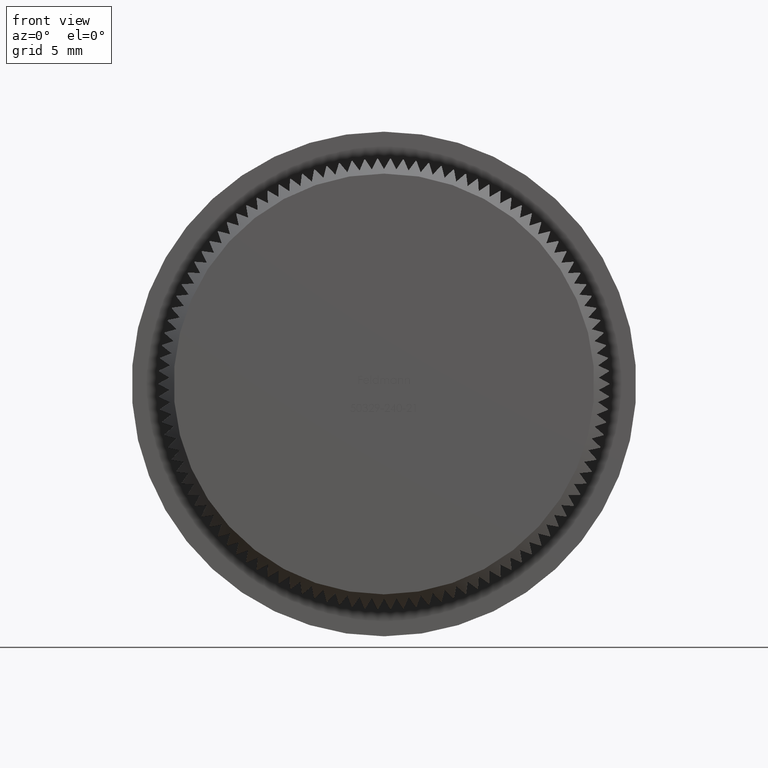
[diagram: clean part render]
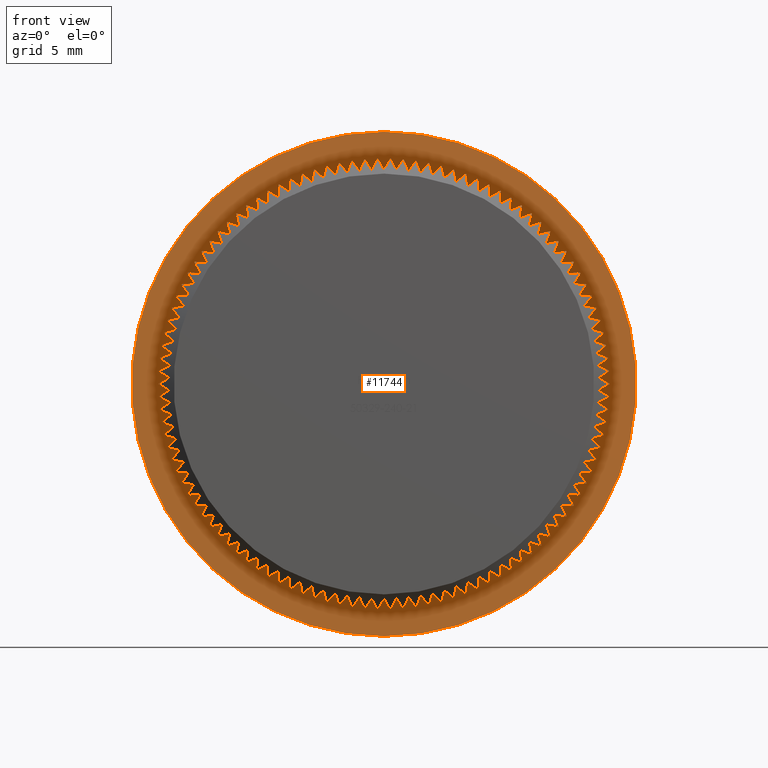
[diagram: same view with one face highlighted and labeled with its STEP entity id]
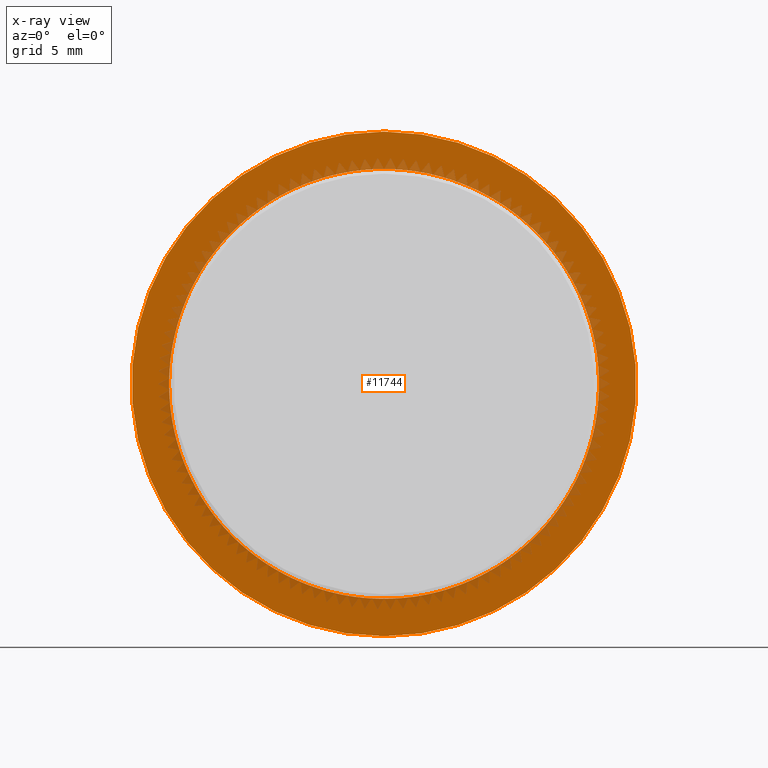
[diagram: x-ray of the same camera — body ghosted, the highlighted face saturated]
A machine part, front view. The second image highlights one B-rep face of the part: STEP entity #11744.
The next image is the same camera in x-ray: the body ghosted, the highlighted face saturated — about 14% of this face is hidden behind the body in this view.
In plain terms, the highlighted planar face has unit normal (0, -1, -0).
Its self-contained STEP definition (entity closure, byte-faithful):
#16 = AXIS2_PLACEMENT_3D ( 'NONE', #856, #3089, #20009 ) ;
#23 = DIRECTION ( 'NONE',  ( -0.0000000000000000000, -1.000000000000000000, -0.0000000000000000000 ) ) ;
#42 = CARTESIAN_POINT ( 'NONE',  ( 0.0000000000000000000, 8.000000000000000000, 0.0000000000000000000 ) ) ;
#53 = DIRECTION ( 'NONE',  ( -0.0000000000000000000, -1.000000000000000000, -0.0000000000000000000 ) ) ;
#63 = CARTESIAN_POINT ( 'NONE',  ( 0.0000000000000000000, 8.000000000000000000, 0.0000000000000000000 ) ) ;
#65 = VERTEX_POINT ( 'NONE', #8362 ) ;
#114 = CARTESIAN_POINT ( 'NONE',  ( 9.083728712157388000, 7.999999999999992900, -11.10893211267075900 ) ) ;
#161 = DIRECTION ( 'NONE',  ( 0.0000000000000000000, 0.0000000000000000000, -1.000000000000000000 ) ) ;
#163 = ORIENTED_EDGE ( 'NONE', *, *, #15001, .F. ) ;
#166 = EDGE_CURVE ( 'NONE', #10170, #11314, #7862, .T. ) ;
#170 = EDGE_CURVE ( 'NONE', #18889, #17156, #14568, .T. ) ;
#172 = DIRECTION ( 'NONE',  ( -0.0000000000000000000, -1.000000000000000000, -0.0000000000000000000 ) ) ;
#200 = ORIENTED_EDGE ( 'NONE', *, *, #3021, .F. ) ;
#217 = CARTESIAN_POINT ( 'NONE',  ( 0.0000000000000000000, 8.000000000000000000, 0.0000000000000000000 ) ) ;
#231 = DIRECTION ( 'NONE',  ( -0.0000000000000000000, -1.000000000000000000, -0.0000000000000000000 ) ) ;
#244 = VERTEX_POINT ( 'NONE', #13320 ) ;
#264 = VERTEX_POINT ( 'NONE', #7043 ) ;
#278 = DIRECTION ( 'NONE',  ( 0.0000000000000000000, 0.0000000000000000000, -1.000000000000000000 ) ) ;
#290 = VERTEX_POINT ( 'NONE', #11803 ) ;
#322 = DIRECTION ( 'NONE',  ( -0.0000000000000000000, -1.000000000000000000, -0.0000000000000000000 ) ) ;
#397 = AXIS2_PLACEMENT_3D ( 'NONE', #17071, #8624, #19241 ) ;
#419 = DIRECTION ( 'NONE',  ( 0.0000000000000000000, 0.0000000000000000000, -1.000000000000000000 ) ) ;
#449 = CARTESIAN_POINT ( 'NONE',  ( -0.8192244358807224700, 8.000000000000001800, 14.32659664134004800 ) ) ;
#475 = AXIS2_PLACEMENT_3D ( 'NONE', #22848, #12079, #22668 ) ;
#479 = AXIS2_PLACEMENT_3D ( 'NONE', #22656, #3042, #26650 ) ;
#529 = EDGE_CURVE ( 'NONE', #1890, #15119, #1120, .T. ) ;
#580 = DIRECTION ( 'NONE',  ( -0.0000000000000000000, -1.000000000000000000, -0.0000000000000000000 ) ) ;
#610 = VERTEX_POINT ( 'NONE', #19261 ) ;
#618 = EDGE_CURVE ( 'NONE', #19143, #23520, #12214, .T. ) ;
#625 = DIRECTION ( 'NONE',  ( -0.0000000000000000000, -1.000000000000000000, -0.0000000000000000000 ) ) ;
#630 = DIRECTION ( 'NONE',  ( 0.0000000000000000000, 0.0000000000000000000, -1.000000000000000000 ) ) ;
#642 = AXIS2_PLACEMENT_3D ( 'NONE', #2659, #17712, #19848 ) ;
#664 = ORIENTED_EDGE ( 'NONE', *, *, #15854, .F. ) ;
#702 = DIRECTION ( 'NONE',  ( -0.0000000000000000000, -1.000000000000000000, -0.0000000000000000000 ) ) ;
#723 = EDGE_CURVE ( 'NONE', #10108, #25889, #3136, .T. ) ;
#844 = DIRECTION ( 'NONE',  ( -0.0000000000000000000, -1.000000000000000000, -0.0000000000000000000 ) ) ;
#856 = CARTESIAN_POINT ( 'NONE',  ( 0.0000000000000000000, 8.000000000000000000, 0.0000000000000000000 ) ) ;
#880 = CARTESIAN_POINT ( 'NONE',  ( -7.056367468664341800, 7.999999999999992900, -12.49520620666884700 ) ) ;
#893 = EDGE_CURVE ( 'NONE', #5006, #9135, #19607, .T. ) ;
#894 = EDGE_CURVE ( 'NONE', #6823, #2932, #18256, .T. ) ;
#902 = ORIENTED_EDGE ( 'NONE', *, *, #15075, .F. ) ;
#923 = VERTEX_POINT ( 'NONE', #10583 ) ;
#990 = CIRCLE ( 'NONE', #6261, 14.35000000000000100 ) ;
#1015 = DIRECTION ( 'NONE',  ( 0.0000000000000000000, 0.0000000000000000000, -1.000000000000000000 ) ) ;
#1049 = ORIENTED_EDGE ( 'NONE', *, *, #1336, .F. ) ;
#1084 = CIRCLE ( 'NONE', #14282, 14.35000000000000100 ) ;
#1120 = CIRCLE ( 'NONE', #13420, 14.35000000000000100 ) ;
#1121 = DIRECTION ( 'NONE',  ( -0.0000000000000000000, -1.000000000000000000, -0.0000000000000000000 ) ) ;
#1124 = CIRCLE ( 'NONE', #13624, 14.35000000000000100 ) ;
#1162 = VERTEX_POINT ( 'NONE', #13556 ) ;
#1178 = DIRECTION ( 'NONE',  ( 0.0000000000000000000, 0.0000000000000000000, -1.000000000000000000 ) ) ;
#1192 = AXIS2_PLACEMENT_3D ( 'NONE', #25950, #23797, #4476 ) ;
#1215 = CARTESIAN_POINT ( 'NONE',  ( 14.20393769099140600, 7.999999999999996400, -2.042217929221504600 ) ) ;
#1227 = DIRECTION ( 'NONE',  ( -0.0000000000000000000, -1.000000000000000000, -0.0000000000000000000 ) ) ;
#1275 = CARTESIAN_POINT ( 'NONE',  ( 4.042862190674333600, 8.000000000000000000, 13.76872417136809400 ) ) ;
#1333 = CARTESIAN_POINT ( 'NONE',  ( 0.0000000000000000000, 8.000000000000000000, 0.0000000000000000000 ) ) ;
#1336 = EDGE_CURVE ( 'NONE', #15798, #24643, #20966, .T. ) ;
#1348 = ORIENTED_EDGE ( 'NONE', *, *, #19581, .F. ) ;
#1407 = CIRCLE ( 'NONE', #2769, 14.35000000000000100 ) ;
#1422 = ORIENTED_EDGE ( 'NONE', *, *, #21856, .F. ) ;
#1432 = CIRCLE ( 'NONE', #7976, 14.35000000000000100 ) ;
#1446 = CARTESIAN_POINT ( 'NONE',  ( -7.056367468664429800, 7.999999999999989300, 12.49520620666879900 ) ) ;
#1465 = EDGE_CURVE ( 'NONE', #22492, #13614, #15533, .T. ) ;
#1477 = VERTEX_POINT ( 'NONE', #8960 ) ;
#1517 = VERTEX_POINT ( 'NONE', #7624 ) ;
#1544 = EDGE_CURVE ( 'NONE', #20913, #6813, #24949, .T. ) ;
#1557 = ORIENTED_EDGE ( 'NONE', *, *, #26059, .F. ) ;
#1571 = AXIS2_PLACEMENT_3D ( 'NONE', #13853, #16225, #7682 ) ;
#1580 = ORIENTED_EDGE ( 'NONE', *, *, #9875, .F. ) ;
#1681 = DIRECTION ( 'NONE',  ( -0.0000000000000000000, -1.000000000000000000, -0.0000000000000000000 ) ) ;
#1704 = CARTESIAN_POINT ( 'NONE',  ( 13.64766100883540500, 8.000000000000000000, 4.434393869280651000 ) ) ;
#1745 = EDGE_CURVE ( 'NONE', #17410, #7090, #18615, .T. ) ;
#1752 = ORIENTED_EDGE ( 'NONE', *, *, #9551, .F. ) ;
#1755 = ORIENTED_EDGE ( 'NONE', *, *, #21834, .F. ) ;
#1793 = CARTESIAN_POINT ( 'NONE',  ( 0.0000000000000000000, 8.000000000000000000, 0.0000000000000000000 ) ) ;
#1808 = DIRECTION ( 'NONE',  ( -0.0000000000000000000, -1.000000000000000000, -0.0000000000000000000 ) ) ;
#1850 = CARTESIAN_POINT ( 'NONE',  ( 0.0000000000000000000, 8.000000000000000000, 0.0000000000000000000 ) ) ;
#1869 = CARTESIAN_POINT ( 'NONE',  ( 13.05321913333739800, 8.000000000000000000, -5.961205436576942200 ) ) ;
#1890 = VERTEX_POINT ( 'NONE', #19442 ) ;
#1904 = CARTESIAN_POINT ( 'NONE',  ( 0.0000000000000000000, 8.000000000000000000, 0.0000000000000000000 ) ) ;
#1914 = EDGE_CURVE ( 'NONE', #26325, #24867, #1124, .T. ) ;
#1916 = CARTESIAN_POINT ( 'NONE',  ( 7.056367468664255700, 7.999999999999989300, 12.49520620666889700 ) ) ;
#1948 = CARTESIAN_POINT ( 'NONE',  ( -12.28860858411026900, 7.999999999999992900, -7.410303574519163700 ) ) ;
#2004 = ORIENTED_EDGE ( 'NONE', *, *, #170, .F. ) ;
#2046 = VERTEX_POINT ( 'NONE', #26317 ) ;
#2085 = CIRCLE ( 'NONE', #4933, 14.35000000000000100 ) ;
#2087 = DIRECTION ( 'NONE',  ( -0.0000000000000000000, -1.000000000000000000, -0.0000000000000000000 ) ) ;
#2088 = CARTESIAN_POINT ( 'NONE',  ( 0.0000000000000000000, 8.000000000000000000, 0.0000000000000000000 ) ) ;
#2091 = CIRCLE ( 'NONE', #4823, 14.35000000000000100 ) ;
#2151 = VERTEX_POINT ( 'NONE', #24727 ) ;
#2154 = EDGE_CURVE ( 'NONE', #2539, #4980, #20578, .T. ) ;
#2172 = CARTESIAN_POINT ( 'NONE',  ( 2.446993464277955200, 8.000000000000000000, 14.13982754441443000 ) ) ;
#2252 = CIRCLE ( 'NONE', #3461, 14.35000000000000100 ) ;
#2269 = CIRCLE ( 'NONE', #8092, 14.35000000000000100 ) ;
#2277 = EDGE_CURVE ( 'NONE', #2046, #25672, #15536, .T. ) ;
#2316 = CARTESIAN_POINT ( 'NONE',  ( 0.0000000000000000000, 8.000000000000000000, 0.0000000000000000000 ) ) ;
#2407 = DIRECTION ( 'NONE',  ( -0.0000000000000000000, -1.000000000000000000, -0.0000000000000000000 ) ) ;
#2460 = CARTESIAN_POINT ( 'NONE',  ( -13.37224881918435500, 8.000000000000001800, 5.206290571781662100 ) ) ;
#2485 = AXIS2_PLACEMENT_3D ( 'NONE', #27064, #22891, #10245 ) ;
#2528 = EDGE_CURVE ( 'NONE', #23520, #27678, #22583, .T. ) ;
#2539 = VERTEX_POINT ( 'NONE', #2817 ) ;
#2602 = AXIS2_PLACEMENT_3D ( 'NONE', #8669, #21786, #23654 ) ;
#2630 = VERTEX_POINT ( 'NONE', #21192 ) ;
#2659 = CARTESIAN_POINT ( 'NONE',  ( 0.0000000000000000000, 8.000000000000000000, 0.0000000000000000000 ) ) ;
#2663 = ORIENTED_EDGE ( 'NONE', *, *, #6448, .F. ) ;
#2692 = EDGE_CURVE ( 'NONE', #65, #25465, #11517, .T. ) ;
#2767 = AXIS2_PLACEMENT_3D ( 'NONE', #20259, #13865, #9673 ) ;
#2769 = AXIS2_PLACEMENT_3D ( 'NONE', #10940, #18055, #7709 ) ;
#2770 = DIRECTION ( 'NONE',  ( 0.0000000000000000000, 0.0000000000000000000, -1.000000000000000000 ) ) ;
#2813 = EDGE_CURVE ( 'NONE', #27561, #18145, #23224, .T. ) ;
#2817 = CARTESIAN_POINT ( 'NONE',  ( 11.36379722898454900, 8.000000000000000000, 8.762797072768668400 ) ) ;
#2873 = DIRECTION ( 'NONE',  ( -0.0000000000000000000, -1.000000000000000000, -0.0000000000000000000 ) ) ;
#2932 = VERTEX_POINT ( 'NONE', #21164 ) ;
#2944 = ORIENTED_EDGE ( 'NONE', *, *, #14160, .F. ) ;
#2954 = ORIENTED_EDGE ( 'NONE', *, *, #16028, .F. ) ;
#3021 = EDGE_CURVE ( 'NONE', #17156, #15591, #2091, .T. ) ;
#3035 = CIRCLE ( 'NONE', #14199, 14.35000000000000100 ) ;
#3042 = DIRECTION ( 'NONE',  ( -0.0000000000000000000, -1.000000000000000000, -0.0000000000000000000 ) ) ;
#3051 = EDGE_CURVE ( 'NONE', #17091, #18209, #17914, .T. ) ;
#3089 = DIRECTION ( 'NONE',  ( -0.0000000000000000000, -1.000000000000000000, -0.0000000000000000000 ) ) ;
#3136 = CIRCLE ( 'NONE', #19049, 14.35000000000000100 ) ;
#3141 = EDGE_CURVE ( 'NONE', #25260, #20254, #19268, .T. ) ;
#3152 = CARTESIAN_POINT ( 'NONE',  ( 0.0000000000000000000, 8.000000000000000000, 0.0000000000000000000 ) ) ;
#3356 = DIRECTION ( 'NONE',  ( 0.0000000000000000000, 0.0000000000000000000, -1.000000000000000000 ) ) ;
#3451 = CARTESIAN_POINT ( 'NONE',  ( 0.0000000000000000000, 8.000000000000000000, 0.0000000000000000000 ) ) ;
#3461 = AXIS2_PLACEMENT_3D ( 'NONE', #9960, #22691, #20738 ) ;
#3494 = DIRECTION ( 'NONE',  ( 0.0000000000000000000, 0.0000000000000000000, -1.000000000000000000 ) ) ;
#3546 = AXIS2_PLACEMENT_3D ( 'NONE', #6411, #27748, #21418 ) ;
#3577 = AXIS2_PLACEMENT_3D ( 'NONE', #13384, #4452, #26017 ) ;
#3600 = DIRECTION ( 'NONE',  ( -0.0000000000000000000, -1.000000000000000000, -0.0000000000000000000 ) ) ;
#3619 = ORIENTED_EDGE ( 'NONE', *, *, #25942, .F. ) ;
#3649 = VERTEX_POINT ( 'NONE', #18773 ) ;
#3674 = CARTESIAN_POINT ( 'NONE',  ( 0.0000000000000000000, 8.000000000000000000, 0.0000000000000000000 ) ) ;
#3675 = CIRCLE ( 'NONE', #18868, 14.35000000000000100 ) ;
#3696 = DIRECTION ( 'NONE',  ( -0.0000000000000000000, -1.000000000000000000, -0.0000000000000000000 ) ) ;
#3735 = CARTESIAN_POINT ( 'NONE',  ( 0.0000000000000000000, 8.000000000000000000, 0.0000000000000000000 ) ) ;
#3748 = AXIS2_PLACEMENT_3D ( 'NONE', #9611, #13990, #13908 ) ;
#3788 = CARTESIAN_POINT ( 'NONE',  ( 0.0000000000000000000, 8.000000000000000000, 0.0000000000000000000 ) ) ;
#3796 = EDGE_CURVE ( 'NONE', #6852, #19467, #19232, .T. ) ;
#3803 = CIRCLE ( 'NONE', #25933, 14.35000000000000100 ) ;
#3822 = ORIENTED_EDGE ( 'NONE', *, *, #3051, .F. ) ;
#3878 = CARTESIAN_POINT ( 'NONE',  ( -0.8192244358806252100, 7.999999999999996400, -14.32659664134005500 ) ) ;
#3923 = VERTEX_POINT ( 'NONE', #22078 ) ;
#3932 = CIRCLE ( 'NONE', #397, 14.35000000000000100 ) ;
#3937 = CARTESIAN_POINT ( 'NONE',  ( -8.434718370396925700, 7.999999999999996400, -11.60939386928054300 ) ) ;
#3946 = ORIENTED_EDGE ( 'NONE', *, *, #18511, .F. ) ;
#3950 = EDGE_CURVE ( 'NONE', #26003, #923, #9796, .T. ) ;
#3999 = ORIENTED_EDGE ( 'NONE', *, *, #4617, .F. ) ;
#4030 = AXIS2_PLACEMENT_3D ( 'NONE', #19497, #53, #19406 ) ;
#4053 = VERTEX_POINT ( 'NONE', #18715 ) ;
#4067 = AXIS2_PLACEMENT_3D ( 'NONE', #8506, #23481, #23582 ) ;
#4101 = CARTESIAN_POINT ( 'NONE',  ( 0.0000000000000000000, 8.000000000000000000, 0.0000000000000000000 ) ) ;
#4113 = DIRECTION ( 'NONE',  ( 0.0000000000000000000, 0.0000000000000000000, -1.000000000000000000 ) ) ;
#4132 = CARTESIAN_POINT ( 'NONE',  ( 0.0000000000000000000, 8.000000000000000000, 0.0000000000000000000 ) ) ;
#4160 = CARTESIAN_POINT ( 'NONE',  ( 0.0000000000000000000, 8.000000000000000000, 0.0000000000000000000 ) ) ;
#4193 = AXIS2_PLACEMENT_3D ( 'NONE', #20900, #12445, #27688 ) ;
#4288 = DIRECTION ( 'NONE',  ( -0.0000000000000000000, -1.000000000000000000, -0.0000000000000000000 ) ) ;
#4360 = AXIS2_PLACEMENT_3D ( 'NONE', #16819, #18985, #27526 ) ;
#4380 = CARTESIAN_POINT ( 'NONE',  ( 0.0000000000000000000, 8.000000000000000000, 0.0000000000000000000 ) ) ;
#4397 = AXIS2_PLACEMENT_3D ( 'NONE', #8317, #5759, #20791 ) ;
#4413 = CARTESIAN_POINT ( 'NONE',  ( 0.0000000000000000000, 8.000000000000000000, 0.0000000000000000000 ) ) ;
#4452 = DIRECTION ( 'NONE',  ( -0.0000000000000000000, -1.000000000000000000, -0.0000000000000000000 ) ) ;
#4476 = DIRECTION ( 'NONE',  ( 0.0000000000000000000, 0.0000000000000000000, -1.000000000000000000 ) ) ;
#4480 = CARTESIAN_POINT ( 'NONE',  ( 11.84552172141588000, 8.000000000000000000, -8.099760190738033200 ) ) ;
#4504 = CARTESIAN_POINT ( 'NONE',  ( 0.0000000000000000000, 8.000000000000000000, 0.0000000000000000000 ) ) ;
#4533 = CARTESIAN_POINT ( 'NONE',  ( -12.69161255981865300, 8.000000000000000000, 6.696676088288389100 ) ) ;
#4575 = DIRECTION ( 'NONE',  ( 0.0000000000000000000, 0.0000000000000000000, -1.000000000000000000 ) ) ;
#4597 = CARTESIAN_POINT ( 'NONE',  ( 0.0000000000000000000, 8.000000000000000000, 0.0000000000000000000 ) ) ;
#4610 = CIRCLE ( 'NONE', #18913, 14.35000000000000100 ) ;
#4617 = EDGE_CURVE ( 'NONE', #12017, #20836, #3035, .T. ) ;
#4622 = DIRECTION ( 'NONE',  ( 0.0000000000000000000, 0.0000000000000000000, -1.000000000000000000 ) ) ;
#4640 = CIRCLE ( 'NONE', #12811, 14.35000000000000100 ) ;
#4667 = CARTESIAN_POINT ( 'NONE',  ( 0.0000000000000000000, 8.000000000000000000, 0.0000000000000000000 ) ) ;
#4684 = ORIENTED_EDGE ( 'NONE', *, *, #19630, .F. ) ;
#4693 = CIRCLE ( 'NONE', #2602, 14.35000000000000100 ) ;
#4823 = AXIS2_PLACEMENT_3D ( 'NONE', #10661, #15047, #10939 ) ;
#4837 = DIRECTION ( 'NONE',  ( 0.0000000000000000000, 0.0000000000000000000, -1.000000000000000000 ) ) ;
#4843 = CARTESIAN_POINT ( 'NONE',  ( -12.28860858411032100, 7.999999999999996400, 7.410303574519077500 ) ) ;
#4846 = VERTEX_POINT ( 'NONE', #2460 ) ;
#4847 = CARTESIAN_POINT ( 'NONE',  ( 4.822308792641525300, 8.000000000000000000, -13.51546661822714600 ) ) ;
#4870 = CARTESIAN_POINT ( 'NONE',  ( 0.0000000000000000000, 8.000000000000000000, 0.0000000000000000000 ) ) ;
#4893 = AXIS2_PLACEMENT_3D ( 'NONE', #20322, #14023, #16203 ) ;
#4910 = CIRCLE ( 'NONE', #25723, 14.35000000000000100 ) ;
#4933 = AXIS2_PLACEMENT_3D ( 'NONE', #25143, #25322, #4113 ) ;
#4954 = CARTESIAN_POINT ( 'NONE',  ( 0.0000000000000000000, 8.000000000000000000, 0.0000000000000000000 ) ) ;
#4962 = ORIENTED_EDGE ( 'NONE', *, *, #27140, .F. ) ;
#4980 = VERTEX_POINT ( 'NONE', #17879 ) ;
#5006 = VERTEX_POINT ( 'NONE', #1215 ) ;
#5060 = AXIS2_PLACEMENT_3D ( 'NONE', #3152, #15927, #5213 ) ;
#5097 = DIRECTION ( 'NONE',  ( -0.0000000000000000000, -1.000000000000000000, -0.0000000000000000000 ) ) ;
#5100 = DIRECTION ( 'NONE',  ( -0.0000000000000000000, -1.000000000000000000, -0.0000000000000000000 ) ) ;
#5105 = AXIS2_PLACEMENT_3D ( 'NONE', #11674, #9617, #7267 ) ;
#5140 = CARTESIAN_POINT ( 'NONE',  ( 12.69161255981856200, 7.999999999999986700, 6.696676088288565000 ) ) ;
#5213 = DIRECTION ( 'NONE',  ( 0.0000000000000000000, 0.0000000000000000000, -1.000000000000000000 ) ) ;
#5224 = AXIS2_PLACEMENT_3D ( 'NONE', #23056, #18970, #10127 ) ;
#5297 = ORIENTED_EDGE ( 'NONE', *, *, #5829, .F. ) ;
#5309 = EDGE_CURVE ( 'NONE', #24892, #12017, #13097, .T. ) ;
#5326 = CARTESIAN_POINT ( 'NONE',  ( 0.0000000000000000000, 8.000000000000000000, 0.0000000000000000000 ) ) ;
#5360 = CARTESIAN_POINT ( 'NONE',  ( -5.586026025654581100, 8.000000000000000000, 13.21812442219809500 ) ) ;
#5367 = DIRECTION ( 'NONE',  ( 0.0000000000000000000, 0.0000000000000000000, -1.000000000000000000 ) ) ;
#5379 = AXIS2_PLACEMENT_3D ( 'NONE', #17736, #2407, #4837 ) ;
#5415 = DIRECTION ( 'NONE',  ( -0.0000000000000000000, -1.000000000000000000, -0.0000000000000000000 ) ) ;
#5574 = DIRECTION ( 'NONE',  ( 0.0000000000000000000, 0.0000000000000000000, -1.000000000000000000 ) ) ;
#5599 = CARTESIAN_POINT ( 'NONE',  ( 5.586026025654674300, 7.999999999999989300, -13.21812442219805900 ) ) ;
#5614 = ORIENTED_EDGE ( 'NONE', *, *, #14164, .F. ) ;
#5738 = CARTESIAN_POINT ( 'NONE',  ( 0.0000000000000000000, 8.000000000000000000, 0.0000000000000000000 ) ) ;
#5759 = DIRECTION ( 'NONE',  ( 0.0000000000000000000, -1.000000000000000000, -0.0000000000000000000 ) ) ;
#5763 = ORIENTED_EDGE ( 'NONE', *, *, #618, .F. ) ;
#5829 = EDGE_CURVE ( 'NONE', #2151, #10007, #27113, .T. ) ;
#5840 = VERTEX_POINT ( 'NONE', #19619 ) ;
#5865 = EDGE_CURVE ( 'NONE', #21577, #23933, #8713, .T. ) ;
#5892 = AXIS2_PLACEMENT_3D ( 'NONE', #18135, #580, #17874 ) ;
#5905 = ORIENTED_EDGE ( 'NONE', *, *, #18175, .F. ) ;
#6031 = EDGE_CURVE ( 'NONE', #11070, #2539, #23779, .T. ) ;
#6066 = VERTEX_POINT ( 'NONE', #16601 ) ;
#6095 = AXIS2_PLACEMENT_3D ( 'NONE', #13954, #6941, #26847 ) ;
#6159 = EDGE_CURVE ( 'NONE', #24330, #11988, #18788, .T. ) ;
#6162 = ORIENTED_EDGE ( 'NONE', *, *, #10282, .F. ) ;
#6242 = CARTESIAN_POINT ( 'NONE',  ( 0.0000000000000000000, 8.000000000000000000, 0.0000000000000000000 ) ) ;
#6261 = AXIS2_PLACEMENT_3D ( 'NONE', #3451, #12202, #22965 ) ;
#6341 = DIRECTION ( 'NONE',  ( -0.0000000000000000000, -1.000000000000000000, -0.0000000000000000000 ) ) ;
#6390 = AXIS2_PLACEMENT_3D ( 'NONE', #25588, #25677, #6475 ) ;
#6411 = CARTESIAN_POINT ( 'NONE',  ( 0.0000000000000000000, 8.000000000000000000, 0.0000000000000000000 ) ) ;
#6435 = CARTESIAN_POINT ( 'NONE',  ( 14.29736033787961000, 8.000000000000000000, 1.228001371671507200 ) ) ;
#6448 = EDGE_CURVE ( 'NONE', #25889, #21771, #13388, .T. ) ;
#6475 = DIRECTION ( 'NONE',  ( 0.0000000000000000000, 0.0000000000000000000, -1.000000000000000000 ) ) ;
#6486 = CIRCLE ( 'NONE', #7430, 14.35000000000000100 ) ;
#6588 = CARTESIAN_POINT ( 'NONE',  ( -7.758195730487758900, 7.999999999999996400, -12.07198819612749600 ) ) ;
#6622 = DIRECTION ( 'NONE',  ( 0.0000000000000000000, 0.0000000000000000000, -1.000000000000000000 ) ) ;
#6641 = CARTESIAN_POINT ( 'NONE',  ( 1.635776731929068100, 8.000000000000000000, 14.25646290225172000 ) ) ;
#6645 = DIRECTION ( 'NONE',  ( 0.0000000000000000000, 0.0000000000000000000, -1.000000000000000000 ) ) ;
#6731 = CARTESIAN_POINT ( 'NONE',  ( 0.0000000000000000000, 8.000000000000000000, 0.0000000000000000000 ) ) ;
#6813 = VERTEX_POINT ( 'NONE', #8954 ) ;
#6823 = VERTEX_POINT ( 'NONE', #23919 ) ;
#6852 = VERTEX_POINT ( 'NONE', #17946 ) ;
#6900 = ORIENTED_EDGE ( 'NONE', *, *, #7241, .F. ) ;
#6901 = VERTEX_POINT ( 'NONE', #5140 ) ;
#6923 = EDGE_CURVE ( 'NONE', #23049, #10496, #4640, .T. ) ;
#6941 = DIRECTION ( 'NONE',  ( -0.0000000000000000000, -1.000000000000000000, -0.0000000000000000000 ) ) ;
#6953 = DIRECTION ( 'NONE',  ( -0.0000000000000000000, -1.000000000000000000, -0.0000000000000000000 ) ) ;
#6974 = CARTESIAN_POINT ( 'NONE',  ( 0.0000000000000000000, 8.000000000000000000, 0.0000000000000000000 ) ) ;
#6980 = ORIENTED_EDGE ( 'NONE', *, *, #9670, .F. ) ;
#7043 = CARTESIAN_POINT ( 'NONE',  ( -13.87855736497307300, 8.000000000000000000, -3.648033095676593600 ) ) ;
#7052 = ORIENTED_EDGE ( 'NONE', *, *, #12336, .F. ) ;
#7077 = AXIS2_PLACEMENT_3D ( 'NONE', #3735, #21297, #14731 ) ;
#7081 = EDGE_CURVE ( 'NONE', #244, #290, #20401, .T. ) ;
#7090 = VERTEX_POINT ( 'NONE', #20731 ) ;
#7150 = AXIS2_PLACEMENT_3D ( 'NONE', #24777, #1227, #11948 ) ;
#7176 = CARTESIAN_POINT ( 'NONE',  ( -14.20393769099137800, 8.000000000000000000, -2.042217929221696900 ) ) ;
#7185 = CARTESIAN_POINT ( 'NONE',  ( 0.0000000000000000000, 8.000000000000000000, 0.0000000000000000000 ) ) ;
#7218 = ORIENTED_EDGE ( 'NONE', *, *, #16757, .F. ) ;
#7241 = EDGE_CURVE ( 'NONE', #1162, #21123, #3932, .T. ) ;
#7267 = DIRECTION ( 'NONE',  ( 0.0000000000000000000, 0.0000000000000000000, -1.000000000000000000 ) ) ;
#7280 = CARTESIAN_POINT ( 'NONE',  ( 0.0000000000000000000, 8.000000000000000000, 0.0000000000000000000 ) ) ;
#7295 = CARTESIAN_POINT ( 'NONE',  ( 0.0000000000000000000, 8.000000000000000000, 0.0000000000000000000 ) ) ;
#7303 = AXIS2_PLACEMENT_3D ( 'NONE', #17791, #322, #19933 ) ;
#7356 = CARTESIAN_POINT ( 'NONE',  ( 3.250228612559823200, 7.999999999999986700, -13.97707100812246700 ) ) ;
#7365 = DIRECTION ( 'NONE',  ( -0.0000000000000000000, -1.000000000000000000, -0.0000000000000000000 ) ) ;
#7397 = EDGE_CURVE ( 'NONE', #19467, #20913, #24082, .T. ) ;
#7411 = CIRCLE ( 'NONE', #27041, 14.35000000000000100 ) ;
#7429 = DIRECTION ( 'NONE',  ( -0.0000000000000000000, -1.000000000000000000, -0.0000000000000000000 ) ) ;
#7430 = AXIS2_PLACEMENT_3D ( 'NONE', #26286, #5100, #17811 ) ;
#7432 = VERTEX_POINT ( 'NONE', #449 ) ;
#7441 = ORIENTED_EDGE ( 'NONE', *, *, #22624, .F. ) ;
#7514 = CARTESIAN_POINT ( 'NONE',  ( 0.0000000000000000000, 8.000000000000000000, 0.0000000000000000000 ) ) ;
#7527 = DIRECTION ( 'NONE',  ( 0.0000000000000000000, 0.0000000000000000000, -1.000000000000000000 ) ) ;
#7579 = DIRECTION ( 'NONE',  ( -0.0000000000000000000, -1.000000000000000000, -0.0000000000000000000 ) ) ;
#7613 = DIRECTION ( 'NONE',  ( -0.0000000000000000000, -1.000000000000000000, -0.0000000000000000000 ) ) ;
#7616 = ORIENTED_EDGE ( 'NONE', *, *, #25127, .F. ) ;
#7621 = ORIENTED_EDGE ( 'NONE', *, *, #14328, .F. ) ;
#7624 = CARTESIAN_POINT ( 'NONE',  ( -11.36379722898460500, 8.000000000000000000, -8.762797072768593800 ) ) ;
#7682 = DIRECTION ( 'NONE',  ( 0.0000000000000000000, 0.0000000000000000000, -1.000000000000000000 ) ) ;
#7709 = DIRECTION ( 'NONE',  ( 0.0000000000000000000, 0.0000000000000000000, -1.000000000000000000 ) ) ;
#7715 = VERTEX_POINT ( 'NONE', #10155 ) ;
#7742 = CARTESIAN_POINT ( 'NONE',  ( -11.36379722898466600, 8.000000000000000000, 8.762797072768515600 ) ) ;
#7762 = CIRCLE ( 'NONE', #15194, 14.35000000000000100 ) ;
#7793 = CIRCLE ( 'NONE', #23637, 14.35000000000000100 ) ;
#7862 = CIRCLE ( 'NONE', #6390, 14.35000000000000100 ) ;
#7866 = DIRECTION ( 'NONE',  ( 0.0000000000000000000, 0.0000000000000000000, -1.000000000000000000 ) ) ;
#7931 = AXIS2_PLACEMENT_3D ( 'NONE', #217, #17403, #26070 ) ;
#7938 = EDGE_CURVE ( 'NONE', #6901, #3923, #2252, .T. ) ;
#7945 = CARTESIAN_POINT ( 'NONE',  ( 0.0000000000000000000, 8.000000000000000000, 0.0000000000000000000 ) ) ;
#7959 = CARTESIAN_POINT ( 'NONE',  ( 0.0000000000000000000, 8.000000000000000000, 0.0000000000000000000 ) ) ;
#7976 = AXIS2_PLACEMENT_3D ( 'NONE', #13561, #702, #20040 ) ;
#7980 = CARTESIAN_POINT ( 'NONE',  ( 13.87855736497304600, 8.000000000000000000, 3.648033095676691300 ) ) ;
#8015 = CARTESIAN_POINT ( 'NONE',  ( 5.586026025654402500, 8.000000000000001800, 13.21812442219816900 ) ) ;
#8060 = EDGE_CURVE ( 'NONE', #12071, #4846, #14677, .T. ) ;
#8092 = AXIS2_PLACEMENT_3D ( 'NONE', #21554, #10894, #25844 ) ;
#8149 = EDGE_CURVE ( 'NONE', #264, #14241, #22387, .T. ) ;
#8150 = CARTESIAN_POINT ( 'NONE',  ( 0.0000000000000000000, 8.000000000000000000, 0.0000000000000000000 ) ) ;
#8165 = DIRECTION ( 'NONE',  ( 0.0000000000000000000, 0.0000000000000000000, -1.000000000000000000 ) ) ;
#8175 = AXIS2_PLACEMENT_3D ( 'NONE', #4160, #24996, #12160 ) ;
#8249 = VERTEX_POINT ( 'NONE', #11458 ) ;
#8277 = EDGE_CURVE ( 'NONE', #26684, #21362, #26701, .T. ) ;
#8313 = EDGE_CURVE ( 'NONE', #18750, #10170, #12339, .T. ) ;
#8317 = CARTESIAN_POINT ( 'NONE',  ( 16.85000000000000100, 8.000000000000000000, 0.0000000000000000000 ) ) ;
#8362 = CARTESIAN_POINT ( 'NONE',  ( -12.69161255981860800, 8.000000000000000000, -6.696676088288474400 ) ) ;
#8476 = CARTESIAN_POINT ( 'NONE',  ( 6.331522802840056300, 8.000000000000000000, 12.87766745172107700 ) ) ;
#8506 = CARTESIAN_POINT ( 'NONE',  ( 0.0000000000000000000, 8.000000000000000000, 0.0000000000000000000 ) ) ;
#8534 = DIRECTION ( 'NONE',  ( 0.0000000000000000000, 0.0000000000000000000, -1.000000000000000000 ) ) ;
#8551 = CIRCLE ( 'NONE', #22121, 14.35000000000000100 ) ;
#8562 = ORIENTED_EDGE ( 'NONE', *, *, #17699, .F. ) ;
#8613 = DIRECTION ( 'NONE',  ( 0.0000000000000000000, 0.0000000000000000000, -1.000000000000000000 ) ) ;
#8624 = DIRECTION ( 'NONE',  ( -0.0000000000000000000, -1.000000000000000000, -0.0000000000000000000 ) ) ;
#8631 = CIRCLE ( 'NONE', #10857, 14.35000000000000100 ) ;
#8639 = DIRECTION ( 'NONE',  ( 0.0000000000000000000, 0.0000000000000000000, -1.000000000000000000 ) ) ;
#8653 = CIRCLE ( 'NONE', #9899, 14.35000000000000100 ) ;
#8669 = CARTESIAN_POINT ( 'NONE',  ( 0.0000000000000000000, 8.000000000000000000, 0.0000000000000000000 ) ) ;
#8684 = EDGE_CURVE ( 'NONE', #18209, #4053, #4910, .T. ) ;
#8693 = DIRECTION ( 'NONE',  ( -0.0000000000000000000, -1.000000000000000000, -0.0000000000000000000 ) ) ;
#8713 = CIRCLE ( 'NONE', #5379, 14.35000000000000100 ) ;
#8739 = DIRECTION ( 'NONE',  ( 0.0000000000000000000, 0.0000000000000000000, -1.000000000000000000 ) ) ;
#8768 = EDGE_CURVE ( 'NONE', #23933, #3649, #8631, .T. ) ;
#8790 = DIRECTION ( 'NONE',  ( -0.0000000000000000000, -1.000000000000000000, -0.0000000000000000000 ) ) ;
#8798 = CARTESIAN_POINT ( 'NONE',  ( -13.87855736497309800, 7.999999999999996400, 3.648033095676497300 ) ) ;
#8836 = DIRECTION ( 'NONE',  ( -0.0000000000000000000, -1.000000000000000000, -0.0000000000000000000 ) ) ;
#8954 = CARTESIAN_POINT ( 'NONE',  ( 8.434718370396849400, 8.000000000000000000, 11.60939386928060000 ) ) ;
#8960 = CARTESIAN_POINT ( 'NONE',  ( 7.056367468664515900, 7.999999999999996400, -12.49520620666874700 ) ) ;
#8966 = ORIENTED_EDGE ( 'NONE', *, *, #8684, .F. ) ;
#8968 = CARTESIAN_POINT ( 'NONE',  ( 7.758195730487927700, 8.000000000000000000, -12.07198819612738600 ) ) ;
#9012 = VERTEX_POINT ( 'NONE', #11398 ) ;
#9067 = ORIENTED_EDGE ( 'NONE', *, *, #22418, .F. ) ;
#9135 = VERTEX_POINT ( 'NONE', #22807 ) ;
#9209 = AXIS2_PLACEMENT_3D ( 'NONE', #4132, #19191, #17114 ) ;
#9248 = CARTESIAN_POINT ( 'NONE',  ( -2.446993464278060000, 8.000000000000001800, -14.13982754441441300 ) ) ;
#9306 = ORIENTED_EDGE ( 'NONE', *, *, #20778, .F. ) ;
#9392 = ORIENTED_EDGE ( 'NONE', *, *, #13153, .F. ) ;
#9513 = CARTESIAN_POINT ( 'NONE',  ( 0.0000000000000000000, 8.000000000000000000, 0.0000000000000000000 ) ) ;
#9551 = EDGE_CURVE ( 'NONE', #27447, #20532, #27000, .T. ) ;
#9558 = CARTESIAN_POINT ( 'NONE',  ( 0.0000000000000000000, 8.000000000000000000, 0.0000000000000000000 ) ) ;
#9599 = CIRCLE ( 'NONE', #20526, 14.35000000000000100 ) ;
#9611 = CARTESIAN_POINT ( 'NONE',  ( 0.0000000000000000000, 8.000000000000000000, 0.0000000000000000000 ) ) ;
#9617 = DIRECTION ( 'NONE',  ( -0.0000000000000000000, -1.000000000000000000, -0.0000000000000000000 ) ) ;
#9631 = EDGE_CURVE ( 'NONE', #15245, #65, #22336, .T. ) ;
#9670 = EDGE_CURVE ( 'NONE', #18555, #25260, #24005, .T. ) ;
#9673 = DIRECTION ( 'NONE',  ( 0.0000000000000000000, 0.0000000000000000000, -1.000000000000000000 ) ) ;
#9748 = DIRECTION ( 'NONE',  ( -0.0000000000000000000, -1.000000000000000000, -0.0000000000000000000 ) ) ;
#9796 = CIRCLE ( 'NONE', #3748, 14.35000000000000100 ) ;
#9875 = EDGE_CURVE ( 'NONE', #11314, #10122, #26971, .T. ) ;
#9899 = AXIS2_PLACEMENT_3D ( 'NONE', #3674, #1808, #10272 ) ;
#9960 = CARTESIAN_POINT ( 'NONE',  ( 0.0000000000000000000, 8.000000000000000000, 0.0000000000000000000 ) ) ;
#9967 = ORIENTED_EDGE ( 'NONE', *, *, #893, .F. ) ;
#10007 = VERTEX_POINT ( 'NONE', #7742 ) ;
#10009 = ORIENTED_EDGE ( 'NONE', *, *, #7938, .F. ) ;
#10078 = DIRECTION ( 'NONE',  ( -0.0000000000000000000, -1.000000000000000000, -0.0000000000000000000 ) ) ;
#10108 = VERTEX_POINT ( 'NONE', #8015 ) ;
#10111 = EDGE_CURVE ( 'NONE', #14906, #17410, #10959, .T. ) ;
#10122 = VERTEX_POINT ( 'NONE', #1704 ) ;
#10127 = DIRECTION ( 'NONE',  ( 0.0000000000000000000, 0.0000000000000000000, -1.000000000000000000 ) ) ;
#10132 = CIRCLE ( 'NONE', #479, 14.35000000000000100 ) ;
#10133 = DIRECTION ( 'NONE',  ( -0.0000000000000000000, -1.000000000000000000, -0.0000000000000000000 ) ) ;
#10142 = VERTEX_POINT ( 'NONE', #3937 ) ;
#10149 = CARTESIAN_POINT ( 'NONE',  ( -11.84552172141582500, 8.000000000000000000, 8.099760190738113200 ) ) ;
#10155 = CARTESIAN_POINT ( 'NONE',  ( -10.84500639198356400, 8.000000000000000000, -9.397251532114895100 ) ) ;
#10170 = VERTEX_POINT ( 'NONE', #21145 ) ;
#10181 = CIRCLE ( 'NONE', #21586, 14.35000000000000100 ) ;
#10245 = DIRECTION ( 'NONE',  ( 0.0000000000000000000, 0.0000000000000000000, -1.000000000000000000 ) ) ;
#10272 = DIRECTION ( 'NONE',  ( 0.0000000000000000000, 0.0000000000000000000, -1.000000000000000000 ) ) ;
#10282 = EDGE_CURVE ( 'NONE', #4053, #9012, #25316, .T. ) ;
#10285 = ORIENTED_EDGE ( 'NONE', *, *, #21248, .F. ) ;
#10296 = DIRECTION ( 'NONE',  ( -0.0000000000000000000, -1.000000000000000000, -0.0000000000000000000 ) ) ;
#10306 = DIRECTION ( 'NONE',  ( -0.0000000000000000000, -1.000000000000000000, -0.0000000000000000000 ) ) ;
#10311 = AXIS2_PLACEMENT_3D ( 'NONE', #20445, #5415, #14343 ) ;
#10365 = CARTESIAN_POINT ( 'NONE',  ( 0.0000000000000000000, 8.000000000000000000, 0.0000000000000000000 ) ) ;
#10373 = DIRECTION ( 'NONE',  ( -0.0000000000000000000, -1.000000000000000000, -0.0000000000000000000 ) ) ;
#10399 = DIRECTION ( 'NONE',  ( 0.0000000000000000000, 0.0000000000000000000, -1.000000000000000000 ) ) ;
#10464 = CIRCLE ( 'NONE', #2767, 14.35000000000000100 ) ;
#10478 = EDGE_CURVE ( 'NONE', #6813, #18889, #12260, .T. ) ;
#10496 = VERTEX_POINT ( 'NONE', #20026 ) ;
#10508 = FACE_OUTER_BOUND ( 'NONE', #16168, .T. ) ;
#10548 = DIRECTION ( 'NONE',  ( -0.0000000000000000000, -1.000000000000000000, -0.0000000000000000000 ) ) ;
#10583 = CARTESIAN_POINT ( 'NONE',  ( -14.06418475167585800, 7.999999999999986700, 2.849773196366405700 ) ) ;
#10589 = ORIENTED_EDGE ( 'NONE', *, *, #16710, .F. ) ;
#10592 = ORIENTED_EDGE ( 'NONE', *, *, #18601, .F. ) ;
#10610 = EDGE_CURVE ( 'NONE', #16180, #11164, #14268, .T. ) ;
#10661 = CARTESIAN_POINT ( 'NONE',  ( 0.0000000000000000000, 8.000000000000000000, 0.0000000000000000000 ) ) ;
#10667 = DIRECTION ( 'NONE',  ( -0.0000000000000000000, -1.000000000000000000, -0.0000000000000000000 ) ) ;
#10679 = CIRCLE ( 'NONE', #15474, 14.35000000000000100 ) ;
#10705 = DIRECTION ( 'NONE',  ( -0.0000000000000000000, -1.000000000000000000, -0.0000000000000000000 ) ) ;
#10717 = ORIENTED_EDGE ( 'NONE', *, *, #6159, .F. ) ;
#10764 = DIRECTION ( 'NONE',  ( 0.0000000000000000000, 0.0000000000000000000, -1.000000000000000000 ) ) ;
#10767 = AXIS2_PLACEMENT_3D ( 'NONE', #42, #14964, #14682 ) ;
#10780 = DIRECTION ( 'NONE',  ( -0.0000000000000000000, -1.000000000000000000, -0.0000000000000000000 ) ) ;
#10817 = CIRCLE ( 'NONE', #24171, 14.35000000000000100 ) ;
#10827 = EDGE_CURVE ( 'NONE', #10142, #12310, #15835, .T. ) ;
#10857 = AXIS2_PLACEMENT_3D ( 'NONE', #26930, #3600, #7866 ) ;
#10863 = CARTESIAN_POINT ( 'NONE',  ( 0.0000000000000000000, 8.000000000000000000, 0.0000000000000000000 ) ) ;
#10894 = DIRECTION ( 'NONE',  ( -0.0000000000000000000, -1.000000000000000000, -0.0000000000000000000 ) ) ;
#10898 = AXIS2_PLACEMENT_3D ( 'NONE', #1793, #12684, #23173 ) ;
#10901 = DIRECTION ( 'NONE',  ( -0.0000000000000000000, -1.000000000000000000, -0.0000000000000000000 ) ) ;
#10939 = DIRECTION ( 'NONE',  ( 0.0000000000000000000, 0.0000000000000000000, -1.000000000000000000 ) ) ;
#10940 = CARTESIAN_POINT ( 'NONE',  ( 0.0000000000000000000, 8.000000000000000000, 0.0000000000000000000 ) ) ;
#10959 = CIRCLE ( 'NONE', #21633, 14.35000000000000100 ) ;
#10962 = CARTESIAN_POINT ( 'NONE',  ( 0.0000000000000000000, 8.000000000000000000, 0.0000000000000000000 ) ) ;
#11005 = ORIENTED_EDGE ( 'NONE', *, *, #3796, .F. ) ;
#11068 = CIRCLE ( 'NONE', #16895, 14.35000000000000100 ) ;
#11070 = VERTEX_POINT ( 'NONE', #19905 ) ;
#11110 = DIRECTION ( 'NONE',  ( -0.0000000000000000000, -1.000000000000000000, -0.0000000000000000000 ) ) ;
#11123 = EDGE_CURVE ( 'NONE', #20836, #27561, #10464, .T. ) ;
#11140 = CIRCLE ( 'NONE', #4030, 14.35000000000000100 ) ;
#11164 = VERTEX_POINT ( 'NONE', #26768 ) ;
#11231 = DIRECTION ( 'NONE',  ( 0.0000000000000000000, 0.0000000000000000000, -1.000000000000000000 ) ) ;
#11260 = DIRECTION ( 'NONE',  ( 0.0000000000000000000, 0.0000000000000000000, -1.000000000000000000 ) ) ;
#11262 = ORIENTED_EDGE ( 'NONE', *, *, #13992, .F. ) ;
#11281 = DIRECTION ( 'NONE',  ( -0.0000000000000000000, -1.000000000000000000, -0.0000000000000000000 ) ) ;
#11291 = DIRECTION ( 'NONE',  ( -0.0000000000000000000, -1.000000000000000000, -0.0000000000000000000 ) ) ;
#11314 = VERTEX_POINT ( 'NONE', #7980 ) ;
#11391 = CARTESIAN_POINT ( 'NONE',  ( 0.0000000000000000000, 8.000000000000000000, 0.0000000000000000000 ) ) ;
#11398 = CARTESIAN_POINT ( 'NONE',  ( -4.822308792641433000, 7.999999999999989300, 13.51546661822718000 ) ) ;
#11458 = CARTESIAN_POINT ( 'NONE',  ( -11.84552172141577000, 8.000000000000000000, -8.099760190738193100 ) ) ;
#11517 = CIRCLE ( 'NONE', #23145, 14.35000000000000100 ) ;
#11619 = AXIS2_PLACEMENT_3D ( 'NONE', #25594, #21574, #8739 ) ;
#11674 = CARTESIAN_POINT ( 'NONE',  ( 0.0000000000000000000, 8.000000000000000000, 0.0000000000000000000 ) ) ;
#11703 = DIRECTION ( 'NONE',  ( 0.0000000000000000000, 0.0000000000000000000, -1.000000000000000000 ) ) ;
#11744 = ADVANCED_FACE ( 'NONE', ( #10508, #15217 ), #18651, .T. ) ;
#11803 = CARTESIAN_POINT ( 'NONE',  ( 10.84500639198369000, 7.999999999999996400, -9.397251532114749400 ) ) ;
#11830 = DIRECTION ( 'NONE',  ( 0.0000000000000000000, 0.0000000000000000000, -1.000000000000000000 ) ) ;
#11836 = VERTEX_POINT ( 'NONE', #1446 ) ;
#11910 = EDGE_CURVE ( 'NONE', #27678, #12071, #23576, .T. ) ;
#11936 = ORIENTED_EDGE ( 'NONE', *, *, #18683, .F. ) ;
#11948 = DIRECTION ( 'NONE',  ( 0.0000000000000000000, 0.0000000000000000000, -1.000000000000000000 ) ) ;
#11960 = EDGE_CURVE ( 'NONE', #2932, #6823, #24238, .T. ) ;
#11988 = VERTEX_POINT ( 'NONE', #17229 ) ;
#12016 = AXIS2_PLACEMENT_3D ( 'NONE', #23704, #23608, #25666 ) ;
#12017 = VERTEX_POINT ( 'NONE', #9248 ) ;
#12061 = AXIS2_PLACEMENT_3D ( 'NONE', #13021, #172, #8534 ) ;
#12071 = VERTEX_POINT ( 'NONE', #19750 ) ;
#12079 = DIRECTION ( 'NONE',  ( -0.0000000000000000000, -1.000000000000000000, -0.0000000000000000000 ) ) ;
#12109 = AXIS2_PLACEMENT_3D ( 'NONE', #20793, #25641, #14972 ) ;
#12160 = DIRECTION ( 'NONE',  ( 0.0000000000000000000, 0.0000000000000000000, -1.000000000000000000 ) ) ;
#12202 = DIRECTION ( 'NONE',  ( -0.0000000000000000000, -1.000000000000000000, -0.0000000000000000000 ) ) ;
#12214 = CIRCLE ( 'NONE', #20610, 14.35000000000000100 ) ;
#12218 = EDGE_CURVE ( 'NONE', #25172, #24892, #2085, .T. ) ;
#12260 = CIRCLE ( 'NONE', #20045, 14.35000000000000100 ) ;
#12279 = AXIS2_PLACEMENT_3D ( 'NONE', #22777, #26956, #18602 ) ;
#12310 = VERTEX_POINT ( 'NONE', #6588 ) ;
#12336 = EDGE_CURVE ( 'NONE', #12840, #26003, #27212, .T. ) ;
#12339 = CIRCLE ( 'NONE', #12279, 14.35000000000000100 ) ;
#12361 = CARTESIAN_POINT ( 'NONE',  ( -1.635776731929261800, 7.999999999999996400, 14.25646290225169800 ) ) ;
#12387 = CARTESIAN_POINT ( 'NONE',  ( 3.250228612559529700, 8.000000000000001800, 13.97707100812253100 ) ) ;
#12445 = DIRECTION ( 'NONE',  ( -0.0000000000000000000, -1.000000000000000000, -0.0000000000000000000 ) ) ;
#12506 = CIRCLE ( 'NONE', #7150, 14.35000000000000100 ) ;
#12583 = CIRCLE ( 'NONE', #9209, 14.35000000000000100 ) ;
#12653 = EDGE_CURVE ( 'NONE', #24247, #264, #7793, .T. ) ;
#12684 = DIRECTION ( 'NONE',  ( -0.0000000000000000000, -1.000000000000000000, -0.0000000000000000000 ) ) ;
#12762 = ORIENTED_EDGE ( 'NONE', *, *, #166, .F. ) ;
#12811 = AXIS2_PLACEMENT_3D ( 'NONE', #4954, #11281, #15576 ) ;
#12834 = DIRECTION ( 'NONE',  ( -0.0000000000000000000, -1.000000000000000000, -0.0000000000000000000 ) ) ;
#12840 = VERTEX_POINT ( 'NONE', #26870 ) ;
#12847 = ORIENTED_EDGE ( 'NONE', *, *, #15978, .F. ) ;
#13021 = CARTESIAN_POINT ( 'NONE',  ( 0.0000000000000000000, 8.000000000000000000, 0.0000000000000000000 ) ) ;
#13097 = CIRCLE ( 'NONE', #14401, 14.35000000000000100 ) ;
#13111 = VERTEX_POINT ( 'NONE', #13639 ) ;
#13137 = CIRCLE ( 'NONE', #642, 14.35000000000000100 ) ;
#13153 = EDGE_CURVE ( 'NONE', #12310, #15109, #12506, .T. ) ;
#13193 = CARTESIAN_POINT ( 'NONE',  ( -5.586026025654487800, 8.000000000000001800, -13.21812442219813400 ) ) ;
#13199 = ORIENTED_EDGE ( 'NONE', *, *, #529, .F. ) ;
#13233 = DIRECTION ( 'NONE',  ( 0.0000000000000000000, 0.0000000000000000000, -1.000000000000000000 ) ) ;
#13266 = AXIS2_PLACEMENT_3D ( 'NONE', #6242, #6341, #10764 ) ;
#13268 = DIRECTION ( 'NONE',  ( -0.0000000000000000000, -1.000000000000000000, -0.0000000000000000000 ) ) ;
#13320 = CARTESIAN_POINT ( 'NONE',  ( 10.29084139829121500, 8.000000000000000000, -10.00105411020337200 ) ) ;
#13378 = ORIENTED_EDGE ( 'NONE', *, *, #26412, .F. ) ;
#13384 = CARTESIAN_POINT ( 'NONE',  ( 0.0000000000000000000, 8.000000000000000000, 0.0000000000000000000 ) ) ;
#13388 = CIRCLE ( 'NONE', #23563, 14.35000000000000100 ) ;
#13389 = AXIS2_PLACEMENT_3D ( 'NONE', #2316, #10705, #14817 ) ;
#13420 = AXIS2_PLACEMENT_3D ( 'NONE', #26875, #1121, #14069 ) ;
#13455 = ORIENTED_EDGE ( 'NONE', *, *, #14916, .F. ) ;
#13461 = DIRECTION ( 'NONE',  ( 0.0000000000000000000, 0.0000000000000000000, -1.000000000000000000 ) ) ;
#13476 = CARTESIAN_POINT ( 'NONE',  ( 0.0000000000000000000, 8.000000000000000000, 0.0000000000000000000 ) ) ;
#13498 = CARTESIAN_POINT ( 'NONE',  ( 13.37224881918439200, 7.999999999999996400, -5.206290571781575100 ) ) ;
#13528 = ORIENTED_EDGE ( 'NONE', *, *, #3950, .F. ) ;
#13556 = CARTESIAN_POINT ( 'NONE',  ( -14.34414796708451500, 8.000000000000001800, -0.4097793288895936700 ) ) ;
#13561 = CARTESIAN_POINT ( 'NONE',  ( 0.0000000000000000000, 8.000000000000000000, 0.0000000000000000000 ) ) ;
#13580 = AXIS2_PLACEMENT_3D ( 'NONE', #21658, #8836, #278 ) ;
#13614 = VERTEX_POINT ( 'NONE', #5599 ) ;
#13624 = AXIS2_PLACEMENT_3D ( 'NONE', #4667, #6953, #13233 ) ;
#13639 = CARTESIAN_POINT ( 'NONE',  ( -10.29084139829107500, 8.000000000000000000, -10.00105411020351600 ) ) ;
#13657 = AXIS2_PLACEMENT_3D ( 'NONE', #14079, #24579, #15970 ) ;
#13662 = DIRECTION ( 'NONE',  ( 0.0000000000000000000, 0.0000000000000000000, -1.000000000000000000 ) ) ;
#13701 = DIRECTION ( 'NONE',  ( 0.0000000000000000000, 0.0000000000000000000, -1.000000000000000000 ) ) ;
#13757 = ORIENTED_EDGE ( 'NONE', *, *, #21130, .F. ) ;
#13766 = CIRCLE ( 'NONE', #13266, 14.35000000000000100 ) ;
#13818 = CIRCLE ( 'NONE', #13389, 14.35000000000000100 ) ;
#13839 = CIRCLE ( 'NONE', #4360, 14.35000000000000100 ) ;
#13853 = CARTESIAN_POINT ( 'NONE',  ( 0.0000000000000000000, 8.000000000000000000, 0.0000000000000000000 ) ) ;
#13860 = AXIS2_PLACEMENT_3D ( 'NONE', #19614, #625, #21734 ) ;
#13864 = DIRECTION ( 'NONE',  ( -0.0000000000000000000, -1.000000000000000000, -0.0000000000000000000 ) ) ;
#13865 = DIRECTION ( 'NONE',  ( -0.0000000000000000000, -1.000000000000000000, -0.0000000000000000000 ) ) ;
#13870 = ORIENTED_EDGE ( 'NONE', *, *, #11960, .T. ) ;
#13908 = DIRECTION ( 'NONE',  ( 0.0000000000000000000, 0.0000000000000000000, -1.000000000000000000 ) ) ;
#13920 = CARTESIAN_POINT ( 'NONE',  ( 13.37224881918428000, 8.000000000000000000, 5.206290571781854800 ) ) ;
#13935 = ORIENTED_EDGE ( 'NONE', *, *, #5865, .F. ) ;
#13943 = AXIS2_PLACEMENT_3D ( 'NONE', #9513, #22702, #15964 ) ;
#13954 = CARTESIAN_POINT ( 'NONE',  ( 0.0000000000000000000, 8.000000000000000000, 0.0000000000000000000 ) ) ;
#13958 = EDGE_CURVE ( 'NONE', #18145, #26684, #16196, .T. ) ;
#13990 = DIRECTION ( 'NONE',  ( -0.0000000000000000000, -1.000000000000000000, -0.0000000000000000000 ) ) ;
#13992 = EDGE_CURVE ( 'NONE', #8249, #1517, #10132, .T. ) ;
#14023 = DIRECTION ( 'NONE',  ( -0.0000000000000000000, -1.000000000000000000, -0.0000000000000000000 ) ) ;
#14026 = AXIS2_PLACEMENT_3D ( 'NONE', #3788, #10667, #25543 ) ;
#14059 = ORIENTED_EDGE ( 'NONE', *, *, #10111, .F. ) ;
#14069 = DIRECTION ( 'NONE',  ( 0.0000000000000000000, 0.0000000000000000000, -1.000000000000000000 ) ) ;
#14079 = CARTESIAN_POINT ( 'NONE',  ( 0.0000000000000000000, 8.000000000000000000, 0.0000000000000000000 ) ) ;
#14160 = EDGE_CURVE ( 'NONE', #923, #16991, #25214, .T. ) ;
#14164 = EDGE_CURVE ( 'NONE', #11836, #14906, #17885, .T. ) ;
#14173 = ORIENTED_EDGE ( 'NONE', *, *, #2813, .F. ) ;
#14199 = AXIS2_PLACEMENT_3D ( 'NONE', #63, #15077, #17258 ) ;
#14210 = CIRCLE ( 'NONE', #16, 14.35000000000000100 ) ;
#14241 = VERTEX_POINT ( 'NONE', #25449 ) ;
#14268 = CIRCLE ( 'NONE', #5105, 14.35000000000000100 ) ;
#14282 = AXIS2_PLACEMENT_3D ( 'NONE', #6731, #17252, #8613 ) ;
#14328 = EDGE_CURVE ( 'NONE', #24643, #21577, #22875, .T. ) ;
#14343 = DIRECTION ( 'NONE',  ( 0.0000000000000000000, 0.0000000000000000000, -1.000000000000000000 ) ) ;
#14384 = ORIENTED_EDGE ( 'NONE', *, *, #8149, .F. ) ;
#14401 = AXIS2_PLACEMENT_3D ( 'NONE', #18235, #20187, #7527 ) ;
#14502 = CARTESIAN_POINT ( 'NONE',  ( -2.446993464278156800, 7.999999999999996400, 14.13982754441439700 ) ) ;
#14541 = EDGE_CURVE ( 'NONE', #21362, #26908, #19199, .T. ) ;
#14563 = AXIS2_PLACEMENT_3D ( 'NONE', #18233, #7429, #13701 ) ;
#14568 = CIRCLE ( 'NONE', #13580, 14.35000000000000100 ) ;
#14624 = DIRECTION ( 'NONE',  ( -0.0000000000000000000, -1.000000000000000000, -0.0000000000000000000 ) ) ;
#14644 = ORIENTED_EDGE ( 'NONE', *, *, #11123, .F. ) ;
#14645 = CIRCLE ( 'NONE', #21227, 14.35000000000000100 ) ;
#14677 = CIRCLE ( 'NONE', #18962, 14.35000000000000100 ) ;
#14682 = DIRECTION ( 'NONE',  ( 0.0000000000000000000, 0.0000000000000000000, -1.000000000000000000 ) ) ;
#14731 = DIRECTION ( 'NONE',  ( 0.0000000000000000000, 0.0000000000000000000, -1.000000000000000000 ) ) ;
#14814 = DIRECTION ( 'NONE',  ( 0.0000000000000000000, 0.0000000000000000000, -1.000000000000000000 ) ) ;
#14817 = DIRECTION ( 'NONE',  ( 0.0000000000000000000, 0.0000000000000000000, -1.000000000000000000 ) ) ;
#14856 = AXIS2_PLACEMENT_3D ( 'NONE', #27026, #9748, #1178 ) ;
#14906 = VERTEX_POINT ( 'NONE', #26657 ) ;
#14916 = EDGE_CURVE ( 'NONE', #11988, #2151, #25842, .T. ) ;
#14964 = DIRECTION ( 'NONE',  ( -0.0000000000000000000, -1.000000000000000000, -0.0000000000000000000 ) ) ;
#14972 = DIRECTION ( 'NONE',  ( 0.0000000000000000000, 0.0000000000000000000, -1.000000000000000000 ) ) ;
#14991 = CARTESIAN_POINT ( 'NONE',  ( 0.0000000000000000000, 8.000000000000000000, 0.0000000000000000000 ) ) ;
#15001 = EDGE_CURVE ( 'NONE', #20532, #1162, #13766, .T. ) ;
#15011 = ORIENTED_EDGE ( 'NONE', *, *, #19053, .F. ) ;
#15033 = DIRECTION ( 'NONE',  ( 0.0000000000000000000, 0.0000000000000000000, -1.000000000000000000 ) ) ;
#15047 = DIRECTION ( 'NONE',  ( -0.0000000000000000000, -1.000000000000000000, -0.0000000000000000000 ) ) ;
#15066 = ORIENTED_EDGE ( 'NONE', *, *, #22068, .F. ) ;
#15075 = EDGE_CURVE ( 'NONE', #24733, #10142, #7411, .T. ) ;
#15077 = DIRECTION ( 'NONE',  ( -0.0000000000000000000, -1.000000000000000000, -0.0000000000000000000 ) ) ;
#15109 = VERTEX_POINT ( 'NONE', #880 ) ;
#15119 = VERTEX_POINT ( 'NONE', #22355 ) ;
#15141 = CARTESIAN_POINT ( 'NONE',  ( 0.0000000000000000000, 8.000000000000000000, 0.0000000000000000000 ) ) ;
#15153 = CIRCLE ( 'NONE', #17020, 14.35000000000000100 ) ;
#15157 = CARTESIAN_POINT ( 'NONE',  ( 13.64766100883549900, 8.000000000000000000, -4.434393869280365100 ) ) ;
#15194 = AXIS2_PLACEMENT_3D ( 'NONE', #15248, #8790, #4622 ) ;
#15217 = FACE_BOUND ( 'NONE', #26125, .T. ) ;
#15245 = VERTEX_POINT ( 'NONE', #24682 ) ;
#15248 = CARTESIAN_POINT ( 'NONE',  ( 0.0000000000000000000, 8.000000000000000000, 0.0000000000000000000 ) ) ;
#15264 = CARTESIAN_POINT ( 'NONE',  ( 0.0000000000000000000, 8.000000000000000000, 0.0000000000000000000 ) ) ;
#15268 = DIRECTION ( 'NONE',  ( -0.0000000000000000000, -1.000000000000000000, -0.0000000000000000000 ) ) ;
#15332 = CARTESIAN_POINT ( 'NONE',  ( 9.083728712157149900, 7.999999999999989300, 11.10893211267095300 ) ) ;
#15343 = ORIENTED_EDGE ( 'NONE', *, *, #26379, .F. ) ;
#15351 = CIRCLE ( 'NONE', #23180, 14.35000000000000100 ) ;
#15430 = CARTESIAN_POINT ( 'NONE',  ( 0.8192244358808253900, 7.999999999999992900, -14.32659664134004500 ) ) ;
#15459 = ORIENTED_EDGE ( 'NONE', *, *, #12653, .F. ) ;
#15461 = CARTESIAN_POINT ( 'NONE',  ( 0.0000000000000000000, 8.000000000000000000, 0.0000000000000000000 ) ) ;
#15474 = AXIS2_PLACEMENT_3D ( 'NONE', #10365, #10078, #27181 ) ;
#15494 = DIRECTION ( 'NONE',  ( -0.0000000000000000000, -1.000000000000000000, -0.0000000000000000000 ) ) ;
#15533 = CIRCLE ( 'NONE', #18289, 14.35000000000000100 ) ;
#15536 = CIRCLE ( 'NONE', #3546, 14.35000000000000100 ) ;
#15545 = DIRECTION ( 'NONE',  ( -0.0000000000000000000, -1.000000000000000000, -0.0000000000000000000 ) ) ;
#15558 = ORIENTED_EDGE ( 'NONE', *, *, #8313, .F. ) ;
#15576 = DIRECTION ( 'NONE',  ( 0.0000000000000000000, 0.0000000000000000000, -1.000000000000000000 ) ) ;
#15591 = VERTEX_POINT ( 'NONE', #8476 ) ;
#15686 = AXIS2_PLACEMENT_3D ( 'NONE', #21752, #23716, #4575 ) ;
#15707 = CARTESIAN_POINT ( 'NONE',  ( 2.446993464278258000, 7.999999999999996400, -14.13982754441437900 ) ) ;
#15719 = CIRCLE ( 'NONE', #5060, 14.35000000000000100 ) ;
#15769 = DIRECTION ( 'NONE',  ( -0.0000000000000000000, -1.000000000000000000, -0.0000000000000000000 ) ) ;
#15798 = VERTEX_POINT ( 'NONE', #24551 ) ;
#15806 = AXIS2_PLACEMENT_3D ( 'NONE', #14991, #14624, #19062 ) ;
#15835 = CIRCLE ( 'NONE', #10898, 14.35000000000000100 ) ;
#15838 = ORIENTED_EDGE ( 'NONE', *, *, #20339, .F. ) ;
#15854 = EDGE_CURVE ( 'NONE', #22367, #18555, #990, .T. ) ;
#15919 = CARTESIAN_POINT ( 'NONE',  ( -14.29736033787962800, 8.000000000000000000, 1.228001371671304300 ) ) ;
#15927 = DIRECTION ( 'NONE',  ( -0.0000000000000000000, -1.000000000000000000, -0.0000000000000000000 ) ) ;
#15964 = DIRECTION ( 'NONE',  ( 0.0000000000000000000, 0.0000000000000000000, -1.000000000000000000 ) ) ;
#15970 = DIRECTION ( 'NONE',  ( 0.0000000000000000000, 0.0000000000000000000, -1.000000000000000000 ) ) ;
#15978 = EDGE_CURVE ( 'NONE', #15109, #21520, #3675, .T. ) ;
#16028 = EDGE_CURVE ( 'NONE', #1517, #7715, #25825, .T. ) ;
#16146 = DIRECTION ( 'NONE',  ( 0.0000000000000000000, 0.0000000000000000000, -1.000000000000000000 ) ) ;
#16168 = EDGE_LOOP ( 'NONE', ( #18823, #13870 ) ) ;
#16180 = VERTEX_POINT ( 'NONE', #7356 ) ;
#16196 = CIRCLE ( 'NONE', #25440, 14.35000000000000100 ) ;
#16203 = DIRECTION ( 'NONE',  ( 0.0000000000000000000, 0.0000000000000000000, -1.000000000000000000 ) ) ;
#16206 = DIRECTION ( 'NONE',  ( -0.0000000000000000000, -1.000000000000000000, -0.0000000000000000000 ) ) ;
#16225 = DIRECTION ( 'NONE',  ( -0.0000000000000000000, -1.000000000000000000, -0.0000000000000000000 ) ) ;
#16249 = CARTESIAN_POINT ( 'NONE',  ( 1.635776731929360600, 8.000000000000000000, -14.25646290225168600 ) ) ;
#16360 = AXIS2_PLACEMENT_3D ( 'NONE', #7945, #20789, #5367 ) ;
#16442 = CARTESIAN_POINT ( 'NONE',  ( 7.758195730487674500, 8.000000000000000000, 12.07198819612754900 ) ) ;
#16454 = ORIENTED_EDGE ( 'NONE', *, *, #8768, .F. ) ;
#16546 = VERTEX_POINT ( 'NONE', #21580 ) ;
#16580 = ORIENTED_EDGE ( 'NONE', *, *, #1544, .F. ) ;
#16601 = CARTESIAN_POINT ( 'NONE',  ( -9.703109818932121700, 8.000000000000001800, -10.57223532852646400 ) ) ;
#16609 = CARTESIAN_POINT ( 'NONE',  ( 0.0000000000000000000, 8.000000000000000000, 0.0000000000000000000 ) ) ;
#16663 = AXIS2_PLACEMENT_3D ( 'NONE', #16695, #23116, #5574 ) ;
#16666 = ORIENTED_EDGE ( 'NONE', *, *, #7397, .F. ) ;
#16695 = CARTESIAN_POINT ( 'NONE',  ( 0.0000000000000000000, 8.000000000000000000, 0.0000000000000000000 ) ) ;
#16710 = EDGE_CURVE ( 'NONE', #10007, #19143, #11068, .T. ) ;
#16757 = EDGE_CURVE ( 'NONE', #13614, #5840, #27441, .T. ) ;
#16813 = ORIENTED_EDGE ( 'NONE', *, *, #22297, .F. ) ;
#16819 = CARTESIAN_POINT ( 'NONE',  ( 0.0000000000000000000, 8.000000000000000000, 0.0000000000000000000 ) ) ;
#16895 = AXIS2_PLACEMENT_3D ( 'NONE', #18038, #13864, #1015 ) ;
#16934 = AXIS2_PLACEMENT_3D ( 'NONE', #6974, #11291, #26068 ) ;
#16991 = VERTEX_POINT ( 'NONE', #19791 ) ;
#17020 = AXIS2_PLACEMENT_3D ( 'NONE', #16609, #3696, #18755 ) ;
#17042 = DIRECTION ( 'NONE',  ( 0.0000000000000000000, 0.0000000000000000000, -1.000000000000000000 ) ) ;
#17071 = CARTESIAN_POINT ( 'NONE',  ( 0.0000000000000000000, 8.000000000000000000, 0.0000000000000000000 ) ) ;
#17091 = VERTEX_POINT ( 'NONE', #14502 ) ;
#17114 = DIRECTION ( 'NONE',  ( 0.0000000000000000000, 0.0000000000000000000, -1.000000000000000000 ) ) ;
#17122 = ORIENTED_EDGE ( 'NONE', *, *, #1465, .F. ) ;
#17156 = VERTEX_POINT ( 'NONE', #1916 ) ;
#17191 = ORIENTED_EDGE ( 'NONE', *, *, #6923, .F. ) ;
#17228 = CARTESIAN_POINT ( 'NONE',  ( -1.635776731929161400, 8.000000000000000000, -14.25646290225170900 ) ) ;
#17229 = CARTESIAN_POINT ( 'NONE',  ( -10.29084139829114400, 8.000000000000005300, 10.00105411020344300 ) ) ;
#17252 = DIRECTION ( 'NONE',  ( -0.0000000000000000000, -1.000000000000000000, -0.0000000000000000000 ) ) ;
#17258 = DIRECTION ( 'NONE',  ( 0.0000000000000000000, 0.0000000000000000000, -1.000000000000000000 ) ) ;
#17264 = AXIS2_PLACEMENT_3D ( 'NONE', #21293, #1681, #14814 ) ;
#17294 = ORIENTED_EDGE ( 'NONE', *, *, #723, .F. ) ;
#17332 = CARTESIAN_POINT ( 'NONE',  ( 0.0000000000000000000, 8.000000000000000000, 0.0000000000000000000 ) ) ;
#17379 = CARTESIAN_POINT ( 'NONE',  ( -9.083728712157231700, 8.000000000000000000, -11.10893211267088400 ) ) ;
#17390 = AXIS2_PLACEMENT_3D ( 'NONE', #2088, #27670, #21431 ) ;
#17403 = DIRECTION ( 'NONE',  ( -0.0000000000000000000, -1.000000000000000000, -0.0000000000000000000 ) ) ;
#17410 = VERTEX_POINT ( 'NONE', #22409 ) ;
#17438 = CARTESIAN_POINT ( 'NONE',  ( -3.250228612559726400, 7.999999999999996400, 13.97707100812248600 ) ) ;
#17470 = AXIS2_PLACEMENT_3D ( 'NONE', #4413, #10548, #25885 ) ;
#17612 = CIRCLE ( 'NONE', #15686, 14.35000000000000100 ) ;
#17614 = DIRECTION ( 'NONE',  ( -0.0000000000000000000, -1.000000000000000000, -0.0000000000000000000 ) ) ;
#17644 = ORIENTED_EDGE ( 'NONE', *, *, #18509, .F. ) ;
#17689 = ORIENTED_EDGE ( 'NONE', *, *, #26685, .F. ) ;
#17699 = EDGE_CURVE ( 'NONE', #21520, #25990, #2269, .T. ) ;
#17712 = DIRECTION ( 'NONE',  ( -0.0000000000000000000, -1.000000000000000000, -0.0000000000000000000 ) ) ;
#17736 = CARTESIAN_POINT ( 'NONE',  ( 0.0000000000000000000, 8.000000000000000000, 0.0000000000000000000 ) ) ;
#17765 = ORIENTED_EDGE ( 'NONE', *, *, #24104, .F. ) ;
#17791 = CARTESIAN_POINT ( 'NONE',  ( 0.0000000000000000000, 8.000000000000000000, 0.0000000000000000000 ) ) ;
#17811 = DIRECTION ( 'NONE',  ( 0.0000000000000000000, 0.0000000000000000000, -1.000000000000000000 ) ) ;
#17820 = EDGE_CURVE ( 'NONE', #290, #2046, #23083, .T. ) ;
#17874 = DIRECTION ( 'NONE',  ( 0.0000000000000000000, 0.0000000000000000000, -1.000000000000000000 ) ) ;
#17879 = CARTESIAN_POINT ( 'NONE',  ( 10.84500639198349800, 7.999999999999992900, 9.397251532114971400 ) ) ;
#17885 = CIRCLE ( 'NONE', #4067, 14.35000000000000100 ) ;
#17914 = CIRCLE ( 'NONE', #27804, 14.35000000000000100 ) ;
#17921 = ORIENTED_EDGE ( 'NONE', *, *, #23194, .F. ) ;
#17946 = CARTESIAN_POINT ( 'NONE',  ( 10.29084139829100600, 7.999999999999992900, 10.00105411020358800 ) ) ;
#17955 = CARTESIAN_POINT ( 'NONE',  ( 0.0000000000000000000, 8.000000000000000000, 0.0000000000000000000 ) ) ;
#18038 = CARTESIAN_POINT ( 'NONE',  ( 0.0000000000000000000, 8.000000000000000000, 0.0000000000000000000 ) ) ;
#18043 = ORIENTED_EDGE ( 'NONE', *, *, #9631, .F. ) ;
#18055 = DIRECTION ( 'NONE',  ( -0.0000000000000000000, -1.000000000000000000, -0.0000000000000000000 ) ) ;
#18135 = CARTESIAN_POINT ( 'NONE',  ( 0.0000000000000000000, 8.000000000000000000, 0.0000000000000000000 ) ) ;
#18145 = VERTEX_POINT ( 'NONE', #23406 ) ;
#18159 = CARTESIAN_POINT ( 'NONE',  ( -13.37224881918432300, 7.999999999999989300, -5.206290571781756200 ) ) ;
#18175 = EDGE_CURVE ( 'NONE', #10496, #11836, #26725, .T. ) ;
#18209 = VERTEX_POINT ( 'NONE', #17438 ) ;
#18214 = EDGE_CURVE ( 'NONE', #7090, #24330, #4610, .T. ) ;
#18233 = CARTESIAN_POINT ( 'NONE',  ( 0.0000000000000000000, 8.000000000000000000, 0.0000000000000000000 ) ) ;
#18235 = CARTESIAN_POINT ( 'NONE',  ( 0.0000000000000000000, 8.000000000000000000, 0.0000000000000000000 ) ) ;
#18256 = CIRCLE ( 'NONE', #14856, 16.85000000000000100 ) ;
#18289 = AXIS2_PLACEMENT_3D ( 'NONE', #4597, #11110, #21777 ) ;
#18352 = CARTESIAN_POINT ( 'NONE',  ( 0.0000000000000000000, 8.000000000000000000, 0.0000000000000000000 ) ) ;
#18509 = EDGE_CURVE ( 'NONE', #18682, #16546, #10679, .T. ) ;
#18511 = EDGE_CURVE ( 'NONE', #11164, #22492, #8653, .T. ) ;
#18555 = VERTEX_POINT ( 'NONE', #2172 ) ;
#18601 = EDGE_CURVE ( 'NONE', #16546, #26325, #21063, .T. ) ;
#18602 = DIRECTION ( 'NONE',  ( 0.0000000000000000000, 0.0000000000000000000, -1.000000000000000000 ) ) ;
#18615 = CIRCLE ( 'NONE', #2485, 14.35000000000000100 ) ;
#18651 = PLANE ( 'NONE',  #4397 ) ;
#18682 = VERTEX_POINT ( 'NONE', #8968 ) ;
#18683 = EDGE_CURVE ( 'NONE', #13111, #6066, #20059, .T. ) ;
#18715 = CARTESIAN_POINT ( 'NONE',  ( -4.042862190674525500, 7.999999999999996400, 13.76872417136803700 ) ) ;
#18721 = EDGE_CURVE ( 'NONE', #25990, #25532, #15351, .T. ) ;
#18745 = AXIS2_PLACEMENT_3D ( 'NONE', #15264, #12834, #23504 ) ;
#18750 = VERTEX_POINT ( 'NONE', #26687 ) ;
#18755 = DIRECTION ( 'NONE',  ( 0.0000000000000000000, 0.0000000000000000000, -1.000000000000000000 ) ) ;
#18773 = CARTESIAN_POINT ( 'NONE',  ( 13.87855736497312300, 8.000000000000000000, -3.648033095676400000 ) ) ;
#18788 = CIRCLE ( 'NONE', #14026, 14.35000000000000100 ) ;
#18804 = CARTESIAN_POINT ( 'NONE',  ( 0.8192244358805251800, 8.000000000000000000, 14.32659664134006100 ) ) ;
#18823 = ORIENTED_EDGE ( 'NONE', *, *, #894, .T. ) ;
#18868 = AXIS2_PLACEMENT_3D ( 'NONE', #1850, #27706, #8165 ) ;
#18889 = VERTEX_POINT ( 'NONE', #16442 ) ;
#18912 = DIRECTION ( 'NONE',  ( -0.0000000000000000000, -1.000000000000000000, -0.0000000000000000000 ) ) ;
#18913 = AXIS2_PLACEMENT_3D ( 'NONE', #10962, #23688, #161 ) ;
#18962 = AXIS2_PLACEMENT_3D ( 'NONE', #22968, #10133, #23062 ) ;
#18970 = DIRECTION ( 'NONE',  ( -0.0000000000000000000, -1.000000000000000000, -0.0000000000000000000 ) ) ;
#18980 = CARTESIAN_POINT ( 'NONE',  ( -6.331522802840152200, 8.000000000000000000, -12.87766745172103100 ) ) ;
#18983 = VERTEX_POINT ( 'NONE', #7176 ) ;
#18985 = DIRECTION ( 'NONE',  ( -0.0000000000000000000, -1.000000000000000000, -0.0000000000000000000 ) ) ;
#19009 = ORIENTED_EDGE ( 'NONE', *, *, #25291, .F. ) ;
#19049 = AXIS2_PLACEMENT_3D ( 'NONE', #21840, #25953, #23990 ) ;
#19053 = EDGE_CURVE ( 'NONE', #4846, #12840, #21693, .T. ) ;
#19062 = DIRECTION ( 'NONE',  ( 0.0000000000000000000, 0.0000000000000000000, -1.000000000000000000 ) ) ;
#19140 = CARTESIAN_POINT ( 'NONE',  ( 0.0000000000000000000, 8.000000000000000000, 0.0000000000000000000 ) ) ;
#19143 = VERTEX_POINT ( 'NONE', #10149 ) ;
#19191 = DIRECTION ( 'NONE',  ( -0.0000000000000000000, -1.000000000000000000, -0.0000000000000000000 ) ) ;
#19199 = CIRCLE ( 'NONE', #1192, 14.35000000000000100 ) ;
#19232 = CIRCLE ( 'NONE', #15806, 14.35000000000000100 ) ;
#19241 = DIRECTION ( 'NONE',  ( 0.0000000000000000000, 0.0000000000000000000, -1.000000000000000000 ) ) ;
#19261 = CARTESIAN_POINT ( 'NONE',  ( 0.0000000000000000000, 8.000000000000000000, 14.35000000000000100 ) ) ;
#19268 = CIRCLE ( 'NONE', #27260, 14.35000000000000100 ) ;
#19290 = AXIS2_PLACEMENT_3D ( 'NONE', #9558, #24523, #11703 ) ;
#19328 = ORIENTED_EDGE ( 'NONE', *, *, #8277, .F. ) ;
#19406 = DIRECTION ( 'NONE',  ( 0.0000000000000000000, 0.0000000000000000000, -1.000000000000000000 ) ) ;
#19413 = CARTESIAN_POINT ( 'NONE',  ( 0.0000000000000000000, 8.000000000000000000, 0.0000000000000000000 ) ) ;
#19442 = CARTESIAN_POINT ( 'NONE',  ( 14.34414796708452200, 7.999999999999996400, -0.4097793288893933400 ) ) ;
#19467 = VERTEX_POINT ( 'NONE', #27126 ) ;
#19497 = CARTESIAN_POINT ( 'NONE',  ( 0.0000000000000000000, 8.000000000000000000, 0.0000000000000000000 ) ) ;
#19575 = DIRECTION ( 'NONE',  ( 0.0000000000000000000, 0.0000000000000000000, -1.000000000000000000 ) ) ;
#19581 = EDGE_CURVE ( 'NONE', #2630, #5006, #25683, .T. ) ;
#19607 = CIRCLE ( 'NONE', #475, 14.35000000000000100 ) ;
#19614 = CARTESIAN_POINT ( 'NONE',  ( 0.0000000000000000000, 8.000000000000000000, 0.0000000000000000000 ) ) ;
#19619 = CARTESIAN_POINT ( 'NONE',  ( 6.331522802840326300, 7.999999999999996400, -12.87766745172094600 ) ) ;
#19630 = EDGE_CURVE ( 'NONE', #26943, #15798, #14645, .T. ) ;
#19691 = AXIS2_PLACEMENT_3D ( 'NONE', #20034, #7365, #13461 ) ;
#19750 = CARTESIAN_POINT ( 'NONE',  ( -13.05321913333735600, 7.999999999999989300, 5.961205436577040800 ) ) ;
#19791 = CARTESIAN_POINT ( 'NONE',  ( -14.20393769099139500, 7.999999999999986700, 2.042217929221597800 ) ) ;
#19848 = DIRECTION ( 'NONE',  ( 0.0000000000000000000, 0.0000000000000000000, -1.000000000000000000 ) ) ;
#19852 = DIRECTION ( 'NONE',  ( 0.0000000000000000000, 0.0000000000000000000, -1.000000000000000000 ) ) ;
#19905 = CARTESIAN_POINT ( 'NONE',  ( 11.84552172141570900, 8.000000000000000000, 8.099760190738281900 ) ) ;
#19910 = DIRECTION ( 'NONE',  ( 0.0000000000000000000, 0.0000000000000000000, -1.000000000000000000 ) ) ;
#19933 = DIRECTION ( 'NONE',  ( 0.0000000000000000000, 0.0000000000000000000, -1.000000000000000000 ) ) ;
#19974 = CARTESIAN_POINT ( 'NONE',  ( 0.0000000000000000000, 8.000000000000000000, 0.0000000000000000000 ) ) ;
#20009 = DIRECTION ( 'NONE',  ( 0.0000000000000000000, 0.0000000000000000000, -1.000000000000000000 ) ) ;
#20026 = CARTESIAN_POINT ( 'NONE',  ( -6.331522802840239300, 7.999999999999992900, 12.87766745172099000 ) ) ;
#20034 = CARTESIAN_POINT ( 'NONE',  ( 0.0000000000000000000, 8.000000000000000000, 0.0000000000000000000 ) ) ;
#20040 = DIRECTION ( 'NONE',  ( 0.0000000000000000000, 0.0000000000000000000, -1.000000000000000000 ) ) ;
#20045 = AXIS2_PLACEMENT_3D ( 'NONE', #23195, #10373, #23292 ) ;
#20059 = CIRCLE ( 'NONE', #7931, 14.35000000000000100 ) ;
#20187 = DIRECTION ( 'NONE',  ( -0.0000000000000000000, -1.000000000000000000, -0.0000000000000000000 ) ) ;
#20230 = ORIENTED_EDGE ( 'NONE', *, *, #25897, .F. ) ;
#20254 = VERTEX_POINT ( 'NONE', #18804 ) ;
#20259 = CARTESIAN_POINT ( 'NONE',  ( 0.0000000000000000000, 8.000000000000000000, 0.0000000000000000000 ) ) ;
#20316 = AXIS2_PLACEMENT_3D ( 'NONE', #17955, #7613, #3356 ) ;
#20322 = CARTESIAN_POINT ( 'NONE',  ( 0.0000000000000000000, 8.000000000000000000, 0.0000000000000000000 ) ) ;
#20339 = EDGE_CURVE ( 'NONE', #14241, #26914, #22655, .T. ) ;
#20343 = ORIENTED_EDGE ( 'NONE', *, *, #22058, .F. ) ;
#20401 = CIRCLE ( 'NONE', #5224, 14.35000000000000100 ) ;
#20445 = CARTESIAN_POINT ( 'NONE',  ( 0.0000000000000000000, 8.000000000000000000, 0.0000000000000000000 ) ) ;
#20446 = AXIS2_PLACEMENT_3D ( 'NONE', #1333, #22722, #3494 ) ;
#20484 = DIRECTION ( 'NONE',  ( -0.0000000000000000000, -1.000000000000000000, -0.0000000000000000000 ) ) ;
#20504 = CARTESIAN_POINT ( 'NONE',  ( -14.34414796708451900, 8.000000000000000000, 0.4097793288894934800 ) ) ;
#20526 = AXIS2_PLACEMENT_3D ( 'NONE', #1904, #2087, #17042 ) ;
#20528 = ORIENTED_EDGE ( 'NONE', *, *, #2692, .F. ) ;
#20532 = VERTEX_POINT ( 'NONE', #20504 ) ;
#20555 = ORIENTED_EDGE ( 'NONE', *, *, #10827, .F. ) ;
#20578 = CIRCLE ( 'NONE', #1571, 14.35000000000000100 ) ;
#20610 = AXIS2_PLACEMENT_3D ( 'NONE', #4101, #4288, #8639 ) ;
#20731 = CARTESIAN_POINT ( 'NONE',  ( -9.083728712157308000, 8.000000000000000000, 11.10893211267082100 ) ) ;
#20738 = DIRECTION ( 'NONE',  ( 0.0000000000000000000, 0.0000000000000000000, -1.000000000000000000 ) ) ;
#20770 = DIRECTION ( 'NONE',  ( 0.0000000000000000000, 0.0000000000000000000, -1.000000000000000000 ) ) ;
#20778 = EDGE_CURVE ( 'NONE', #3649, #2630, #9599, .T. ) ;
#20789 = DIRECTION ( 'NONE',  ( -0.0000000000000000000, -1.000000000000000000, -0.0000000000000000000 ) ) ;
#20791 = DIRECTION ( 'NONE',  ( 0.0000000000000000000, 0.0000000000000000000, -1.000000000000000000 ) ) ;
#20793 = CARTESIAN_POINT ( 'NONE',  ( 0.0000000000000000000, 8.000000000000000000, 0.0000000000000000000 ) ) ;
#20836 = VERTEX_POINT ( 'NONE', #17228 ) ;
#20900 = CARTESIAN_POINT ( 'NONE',  ( 0.0000000000000000000, 8.000000000000000000, 0.0000000000000000000 ) ) ;
#20913 = VERTEX_POINT ( 'NONE', #15332 ) ;
#20919 = ORIENTED_EDGE ( 'NONE', *, *, #6031, .F. ) ;
#20955 = AXIS2_PLACEMENT_3D ( 'NONE', #4504, #844, #16146 ) ;
#20966 = CIRCLE ( 'NONE', #20446, 14.35000000000000100 ) ;
#21049 = EDGE_CURVE ( 'NONE', #9012, #23049, #12583, .T. ) ;
#21063 = CIRCLE ( 'NONE', #17470, 14.35000000000000100 ) ;
#21123 = VERTEX_POINT ( 'NONE', #23929 ) ;
#21130 = EDGE_CURVE ( 'NONE', #26908, #16180, #22306, .T. ) ;
#21145 = CARTESIAN_POINT ( 'NONE',  ( 14.06418475167581800, 7.999999999999996400, 2.849773196366598900 ) ) ;
#21164 = CARTESIAN_POINT ( 'NONE',  ( 2.063529856563290200E-015, 8.000000000000000000, 16.85000000000000100 ) ) ;
#21192 = CARTESIAN_POINT ( 'NONE',  ( 14.06418475167587600, 7.999999999999996400, -2.849773196366303600 ) ) ;
#21227 = AXIS2_PLACEMENT_3D ( 'NONE', #19413, #10780, #6645 ) ;
#21232 = CARTESIAN_POINT ( 'NONE',  ( 0.0000000000000000000, 8.000000000000000000, 0.0000000000000000000 ) ) ;
#21248 = EDGE_CURVE ( 'NONE', #18983, #24247, #25314, .T. ) ;
#21293 = CARTESIAN_POINT ( 'NONE',  ( 0.0000000000000000000, 8.000000000000000000, 0.0000000000000000000 ) ) ;
#21297 = DIRECTION ( 'NONE',  ( -0.0000000000000000000, -1.000000000000000000, -0.0000000000000000000 ) ) ;
#21362 = VERTEX_POINT ( 'NONE', #16249 ) ;
#21369 = ORIENTED_EDGE ( 'NONE', *, *, #1914, .F. ) ;
#21392 = ORIENTED_EDGE ( 'NONE', *, *, #23573, .F. ) ;
#21418 = DIRECTION ( 'NONE',  ( 0.0000000000000000000, 0.0000000000000000000, -1.000000000000000000 ) ) ;
#21431 = DIRECTION ( 'NONE',  ( 0.0000000000000000000, 0.0000000000000000000, -1.000000000000000000 ) ) ;
#21504 = ORIENTED_EDGE ( 'NONE', *, *, #1745, .F. ) ;
#21520 = VERTEX_POINT ( 'NONE', #18980 ) ;
#21554 = CARTESIAN_POINT ( 'NONE',  ( 0.0000000000000000000, 8.000000000000000000, 0.0000000000000000000 ) ) ;
#21574 = DIRECTION ( 'NONE',  ( -0.0000000000000000000, -1.000000000000000000, -0.0000000000000000000 ) ) ;
#21577 = VERTEX_POINT ( 'NONE', #13498 ) ;
#21580 = CARTESIAN_POINT ( 'NONE',  ( 8.434718370397085600, 8.000000000000000000, -11.60939386928042800 ) ) ;
#21586 = AXIS2_PLACEMENT_3D ( 'NONE', #7280, #5097, #19852 ) ;
#21633 = AXIS2_PLACEMENT_3D ( 'NONE', #5738, #18912, #20770 ) ;
#21658 = CARTESIAN_POINT ( 'NONE',  ( 0.0000000000000000000, 8.000000000000000000, 0.0000000000000000000 ) ) ;
#21693 = CIRCLE ( 'NONE', #13657, 14.35000000000000100 ) ;
#21734 = DIRECTION ( 'NONE',  ( 0.0000000000000000000, 0.0000000000000000000, -1.000000000000000000 ) ) ;
#21752 = CARTESIAN_POINT ( 'NONE',  ( 0.0000000000000000000, 8.000000000000000000, 0.0000000000000000000 ) ) ;
#21771 = VERTEX_POINT ( 'NONE', #1275 ) ;
#21777 = DIRECTION ( 'NONE',  ( 0.0000000000000000000, 0.0000000000000000000, -1.000000000000000000 ) ) ;
#21786 = DIRECTION ( 'NONE',  ( -0.0000000000000000000, -1.000000000000000000, -0.0000000000000000000 ) ) ;
#21834 = EDGE_CURVE ( 'NONE', #21771, #22367, #25633, .T. ) ;
#21840 = CARTESIAN_POINT ( 'NONE',  ( 0.0000000000000000000, 8.000000000000000000, 0.0000000000000000000 ) ) ;
#21856 = EDGE_CURVE ( 'NONE', #1477, #18682, #8551, .T. ) ;
#22058 = EDGE_CURVE ( 'NONE', #16991, #27447, #14210, .T. ) ;
#22068 = EDGE_CURVE ( 'NONE', #23233, #22818, #25289, .T. ) ;
#22071 = CARTESIAN_POINT ( 'NONE',  ( -9.703109818932196300, 8.000000000000000000, 10.57223532852639600 ) ) ;
#22078 = CARTESIAN_POINT ( 'NONE',  ( 12.28860858411021600, 8.000000000000000000, 7.410303574519248000 ) ) ;
#22095 = ORIENTED_EDGE ( 'NONE', *, *, #23111, .F. ) ;
#22121 = AXIS2_PLACEMENT_3D ( 'NONE', #8150, #10306, #25287 ) ;
#22144 = ORIENTED_EDGE ( 'NONE', *, *, #18214, .F. ) ;
#22164 = DIRECTION ( 'NONE',  ( 0.0000000000000000000, 0.0000000000000000000, -1.000000000000000000 ) ) ;
#22287 = DIRECTION ( 'NONE',  ( 0.0000000000000000000, 0.0000000000000000000, -1.000000000000000000 ) ) ;
#22297 = EDGE_CURVE ( 'NONE', #9135, #1890, #22604, .T. ) ;
#22306 = CIRCLE ( 'NONE', #16934, 14.35000000000000100 ) ;
#22336 = CIRCLE ( 'NONE', #8175, 14.35000000000000100 ) ;
#22355 = CARTESIAN_POINT ( 'NONE',  ( 14.34414796708451300, 8.000000000000000000, 0.4097793288896938200 ) ) ;
#22367 = VERTEX_POINT ( 'NONE', #12387 ) ;
#22387 = CIRCLE ( 'NONE', #26600, 14.35000000000000100 ) ;
#22401 = AXIS2_PLACEMENT_3D ( 'NONE', #7959, #10296, #27112 ) ;
#22409 = CARTESIAN_POINT ( 'NONE',  ( -8.434718370397007400, 7.999999999999992900, 11.60939386928048700 ) ) ;
#22418 = EDGE_CURVE ( 'NONE', #20254, #610, #17612, .T. ) ;
#22421 = EDGE_CURVE ( 'NONE', #610, #7432, #24939, .T. ) ;
#22441 = CARTESIAN_POINT ( 'NONE',  ( 12.28860858411037100, 8.000000000000000000, -7.410303574518991400 ) ) ;
#22492 = VERTEX_POINT ( 'NONE', #4847 ) ;
#22583 = CIRCLE ( 'NONE', #5892, 14.35000000000000100 ) ;
#22604 = CIRCLE ( 'NONE', #7077, 14.35000000000000100 ) ;
#22624 = EDGE_CURVE ( 'NONE', #25465, #8249, #15719, .T. ) ;
#22655 = CIRCLE ( 'NONE', #12061, 14.35000000000000100 ) ;
#22656 = CARTESIAN_POINT ( 'NONE',  ( 0.0000000000000000000, 8.000000000000000000, 0.0000000000000000000 ) ) ;
#22657 = AXIS2_PLACEMENT_3D ( 'NONE', #15461, #15545, #630 ) ;
#22668 = DIRECTION ( 'NONE',  ( 0.0000000000000000000, 0.0000000000000000000, -1.000000000000000000 ) ) ;
#22691 = DIRECTION ( 'NONE',  ( -0.0000000000000000000, -1.000000000000000000, -0.0000000000000000000 ) ) ;
#22702 = DIRECTION ( 'NONE',  ( -0.0000000000000000000, -1.000000000000000000, -0.0000000000000000000 ) ) ;
#22722 = DIRECTION ( 'NONE',  ( -0.0000000000000000000, -1.000000000000000000, -0.0000000000000000000 ) ) ;
#22777 = CARTESIAN_POINT ( 'NONE',  ( 0.0000000000000000000, 8.000000000000000000, 0.0000000000000000000 ) ) ;
#22807 = CARTESIAN_POINT ( 'NONE',  ( 14.29736033787963500, 8.000000000000001800, -1.228001371671207500 ) ) ;
#22818 = VERTEX_POINT ( 'NONE', #26103 ) ;
#22829 = EDGE_CURVE ( 'NONE', #25922, #17091, #10181, .T. ) ;
#22848 = CARTESIAN_POINT ( 'NONE',  ( 0.0000000000000000000, 8.000000000000000000, 0.0000000000000000000 ) ) ;
#22875 = CIRCLE ( 'NONE', #23844, 14.35000000000000100 ) ;
#22891 = DIRECTION ( 'NONE',  ( -0.0000000000000000000, -1.000000000000000000, -0.0000000000000000000 ) ) ;
#22893 = ORIENTED_EDGE ( 'NONE', *, *, #17820, .F. ) ;
#22965 = DIRECTION ( 'NONE',  ( 0.0000000000000000000, 0.0000000000000000000, -1.000000000000000000 ) ) ;
#22968 = CARTESIAN_POINT ( 'NONE',  ( 0.0000000000000000000, 8.000000000000000000, 0.0000000000000000000 ) ) ;
#23049 = VERTEX_POINT ( 'NONE', #5360 ) ;
#23056 = CARTESIAN_POINT ( 'NONE',  ( 0.0000000000000000000, 8.000000000000000000, 0.0000000000000000000 ) ) ;
#23062 = DIRECTION ( 'NONE',  ( 0.0000000000000000000, 0.0000000000000000000, -1.000000000000000000 ) ) ;
#23083 = CIRCLE ( 'NONE', #6095, 14.35000000000000100 ) ;
#23111 = EDGE_CURVE ( 'NONE', #4980, #6852, #6486, .T. ) ;
#23116 = DIRECTION ( 'NONE',  ( -0.0000000000000000000, -1.000000000000000000, -0.0000000000000000000 ) ) ;
#23145 = AXIS2_PLACEMENT_3D ( 'NONE', #13476, #15268, #2770 ) ;
#23173 = DIRECTION ( 'NONE',  ( 0.0000000000000000000, 0.0000000000000000000, -1.000000000000000000 ) ) ;
#23180 = AXIS2_PLACEMENT_3D ( 'NONE', #5326, #15769, #11830 ) ;
#23194 = EDGE_CURVE ( 'NONE', #5840, #1477, #1432, .T. ) ;
#23195 = CARTESIAN_POINT ( 'NONE',  ( 0.0000000000000000000, 8.000000000000000000, 0.0000000000000000000 ) ) ;
#23221 = DIRECTION ( 'NONE',  ( -0.0000000000000000000, -1.000000000000000000, -0.0000000000000000000 ) ) ;
#23224 = CIRCLE ( 'NONE', #16360, 14.35000000000000100 ) ;
#23233 = VERTEX_POINT ( 'NONE', #13920 ) ;
#23292 = DIRECTION ( 'NONE',  ( 0.0000000000000000000, 0.0000000000000000000, -1.000000000000000000 ) ) ;
#23395 = EDGE_CURVE ( 'NONE', #25672, #26943, #13839, .T. ) ;
#23406 = CARTESIAN_POINT ( 'NONE',  ( 0.0000000000000000000, 8.000000000000000000, -14.35000000000000100 ) ) ;
#23470 = CARTESIAN_POINT ( 'NONE',  ( -14.06418475167583700, 7.999999999999996400, -2.849773196366503400 ) ) ;
#23481 = DIRECTION ( 'NONE',  ( -0.0000000000000000000, -1.000000000000000000, -0.0000000000000000000 ) ) ;
#23504 = DIRECTION ( 'NONE',  ( 0.0000000000000000000, 0.0000000000000000000, -1.000000000000000000 ) ) ;
#23520 = VERTEX_POINT ( 'NONE', #4843 ) ;
#23563 = AXIS2_PLACEMENT_3D ( 'NONE', #7185, #24308, #419 ) ;
#23566 = ORIENTED_EDGE ( 'NONE', *, *, #11910, .F. ) ;
#23573 = EDGE_CURVE ( 'NONE', #10122, #23233, #3803, .T. ) ;
#23576 = CIRCLE ( 'NONE', #17390, 14.35000000000000100 ) ;
#23582 = DIRECTION ( 'NONE',  ( 0.0000000000000000000, 0.0000000000000000000, -1.000000000000000000 ) ) ;
#23608 = DIRECTION ( 'NONE',  ( -0.0000000000000000000, -1.000000000000000000, -0.0000000000000000000 ) ) ;
#23637 = AXIS2_PLACEMENT_3D ( 'NONE', #21232, #23, #15033 ) ;
#23654 = DIRECTION ( 'NONE',  ( 0.0000000000000000000, 0.0000000000000000000, -1.000000000000000000 ) ) ;
#23687 = CARTESIAN_POINT ( 'NONE',  ( -4.042862190674430400, 7.999999999999996400, -13.76872417136806500 ) ) ;
#23688 = DIRECTION ( 'NONE',  ( -0.0000000000000000000, -1.000000000000000000, -0.0000000000000000000 ) ) ;
#23704 = CARTESIAN_POINT ( 'NONE',  ( 0.0000000000000000000, 8.000000000000000000, 0.0000000000000000000 ) ) ;
#23716 = DIRECTION ( 'NONE',  ( -0.0000000000000000000, -1.000000000000000000, -0.0000000000000000000 ) ) ;
#23779 = CIRCLE ( 'NONE', #19290, 14.35000000000000100 ) ;
#23797 = DIRECTION ( 'NONE',  ( -0.0000000000000000000, -1.000000000000000000, -0.0000000000000000000 ) ) ;
#23844 = AXIS2_PLACEMENT_3D ( 'NONE', #17332, #17614, #6622 ) ;
#23850 = VERTEX_POINT ( 'NONE', #6435 ) ;
#23864 = CIRCLE ( 'NONE', #16663, 14.35000000000000100 ) ;
#23883 = ORIENTED_EDGE ( 'NONE', *, *, #22829, .F. ) ;
#23919 = CARTESIAN_POINT ( 'NONE',  ( 0.0000000000000000000, 8.000000000000000000, -16.85000000000000100 ) ) ;
#23929 = CARTESIAN_POINT ( 'NONE',  ( -14.29736033787961900, 8.000000000000000000, -1.228001371671404000 ) ) ;
#23933 = VERTEX_POINT ( 'NONE', #15157 ) ;
#23943 = ORIENTED_EDGE ( 'NONE', *, *, #13958, .F. ) ;
#23990 = DIRECTION ( 'NONE',  ( 0.0000000000000000000, 0.0000000000000000000, -1.000000000000000000 ) ) ;
#24005 = CIRCLE ( 'NONE', #12109, 14.35000000000000100 ) ;
#24081 = CARTESIAN_POINT ( 'NONE',  ( -4.822308792641336200, 8.000000000000001800, -13.51546661822721200 ) ) ;
#24082 = CIRCLE ( 'NONE', #13860, 14.35000000000000100 ) ;
#24104 = EDGE_CURVE ( 'NONE', #3923, #11070, #24256, .T. ) ;
#24171 = AXIS2_PLACEMENT_3D ( 'NONE', #4870, #15494, #19910 ) ;
#24238 = CIRCLE ( 'NONE', #7303, 16.85000000000000100 ) ;
#24247 = VERTEX_POINT ( 'NONE', #23470 ) ;
#24256 = CIRCLE ( 'NONE', #26444, 14.35000000000000100 ) ;
#24308 = DIRECTION ( 'NONE',  ( -0.0000000000000000000, -1.000000000000000000, -0.0000000000000000000 ) ) ;
#24330 = VERTEX_POINT ( 'NONE', #22071 ) ;
#24405 = ORIENTED_EDGE ( 'NONE', *, *, #7081, .F. ) ;
#24431 = CARTESIAN_POINT ( 'NONE',  ( 0.0000000000000000000, 8.000000000000000000, 0.0000000000000000000 ) ) ;
#24523 = DIRECTION ( 'NONE',  ( -0.0000000000000000000, -1.000000000000000000, -0.0000000000000000000 ) ) ;
#24534 = CARTESIAN_POINT ( 'NONE',  ( -3.250228612559626900, 8.000000000000000000, -13.97707100812250900 ) ) ;
#24551 = CARTESIAN_POINT ( 'NONE',  ( 12.69161255981870300, 7.999999999999989300, -6.696676088288298500 ) ) ;
#24554 = DIRECTION ( 'NONE',  ( -0.0000000000000000000, -1.000000000000000000, -0.0000000000000000000 ) ) ;
#24579 = DIRECTION ( 'NONE',  ( -0.0000000000000000000, -1.000000000000000000, -0.0000000000000000000 ) ) ;
#24643 = VERTEX_POINT ( 'NONE', #1869 ) ;
#24646 = ORIENTED_EDGE ( 'NONE', *, *, #25966, .F. ) ;
#24677 = ORIENTED_EDGE ( 'NONE', *, *, #2528, .F. ) ;
#24682 = CARTESIAN_POINT ( 'NONE',  ( -13.05321913333731500, 8.000000000000000000, -5.961205436577127900 ) ) ;
#24707 = ORIENTED_EDGE ( 'NONE', *, *, #10610, .F. ) ;
#24727 = CARTESIAN_POINT ( 'NONE',  ( -10.84500639198362700, 7.999999999999992900, 9.397251532114822200 ) ) ;
#24733 = VERTEX_POINT ( 'NONE', #17379 ) ;
#24777 = CARTESIAN_POINT ( 'NONE',  ( 0.0000000000000000000, 8.000000000000000000, 0.0000000000000000000 ) ) ;
#24857 = ORIENTED_EDGE ( 'NONE', *, *, #12218, .F. ) ;
#24867 = VERTEX_POINT ( 'NONE', #26485 ) ;
#24892 = VERTEX_POINT ( 'NONE', #24534 ) ;
#24939 = CIRCLE ( 'NONE', #26257, 14.35000000000000100 ) ;
#24949 = CIRCLE ( 'NONE', #13943, 14.35000000000000100 ) ;
#24996 = DIRECTION ( 'NONE',  ( -0.0000000000000000000, -1.000000000000000000, -0.0000000000000000000 ) ) ;
#25047 = ORIENTED_EDGE ( 'NONE', *, *, #5309, .F. ) ;
#25127 = EDGE_CURVE ( 'NONE', #22818, #6901, #1084, .T. ) ;
#25143 = CARTESIAN_POINT ( 'NONE',  ( 0.0000000000000000000, 8.000000000000000000, 0.0000000000000000000 ) ) ;
#25172 = VERTEX_POINT ( 'NONE', #23687 ) ;
#25214 = CIRCLE ( 'NONE', #10767, 14.35000000000000100 ) ;
#25260 = VERTEX_POINT ( 'NONE', #6641 ) ;
#25287 = DIRECTION ( 'NONE',  ( 0.0000000000000000000, 0.0000000000000000000, -1.000000000000000000 ) ) ;
#25289 = CIRCLE ( 'NONE', #14563, 14.35000000000000100 ) ;
#25291 = EDGE_CURVE ( 'NONE', #6066, #24733, #1407, .T. ) ;
#25314 = CIRCLE ( 'NONE', #20316, 14.35000000000000100 ) ;
#25316 = CIRCLE ( 'NONE', #20955, 14.35000000000000100 ) ;
#25322 = DIRECTION ( 'NONE',  ( -0.0000000000000000000, -1.000000000000000000, -0.0000000000000000000 ) ) ;
#25384 = ORIENTED_EDGE ( 'NONE', *, *, #22421, .F. ) ;
#25420 = EDGE_CURVE ( 'NONE', #23850, #18750, #13818, .T. ) ;
#25440 = AXIS2_PLACEMENT_3D ( 'NONE', #7295, #16206, #22287 ) ;
#25449 = CARTESIAN_POINT ( 'NONE',  ( -13.64766100883543800, 7.999999999999996400, -4.434393869280553300 ) ) ;
#25465 = VERTEX_POINT ( 'NONE', #1948 ) ;
#25509 = AXIS2_PLACEMENT_3D ( 'NONE', #19140, #23221, #10399 ) ;
#25532 = VERTEX_POINT ( 'NONE', #24081 ) ;
#25543 = DIRECTION ( 'NONE',  ( 0.0000000000000000000, 0.0000000000000000000, -1.000000000000000000 ) ) ;
#25588 = CARTESIAN_POINT ( 'NONE',  ( 0.0000000000000000000, 8.000000000000000000, 0.0000000000000000000 ) ) ;
#25594 = CARTESIAN_POINT ( 'NONE',  ( 0.0000000000000000000, 8.000000000000000000, 0.0000000000000000000 ) ) ;
#25633 = CIRCLE ( 'NONE', #25509, 14.35000000000000100 ) ;
#25641 = DIRECTION ( 'NONE',  ( -0.0000000000000000000, -1.000000000000000000, -0.0000000000000000000 ) ) ;
#25666 = DIRECTION ( 'NONE',  ( 0.0000000000000000000, 0.0000000000000000000, -1.000000000000000000 ) ) ;
#25672 = VERTEX_POINT ( 'NONE', #4480 ) ;
#25677 = DIRECTION ( 'NONE',  ( -0.0000000000000000000, -1.000000000000000000, -0.0000000000000000000 ) ) ;
#25683 = CIRCLE ( 'NONE', #18745, 14.35000000000000100 ) ;
#25723 = AXIS2_PLACEMENT_3D ( 'NONE', #24431, #7579, #13662 ) ;
#25793 = ORIENTED_EDGE ( 'NONE', *, *, #14541, .F. ) ;
#25825 = CIRCLE ( 'NONE', #12016, 14.35000000000000100 ) ;
#25842 = CIRCLE ( 'NONE', #22401, 14.35000000000000100 ) ;
#25844 = DIRECTION ( 'NONE',  ( 0.0000000000000000000, 0.0000000000000000000, -1.000000000000000000 ) ) ;
#25853 = DIRECTION ( 'NONE',  ( 0.0000000000000000000, 0.0000000000000000000, -1.000000000000000000 ) ) ;
#25885 = DIRECTION ( 'NONE',  ( 0.0000000000000000000, 0.0000000000000000000, -1.000000000000000000 ) ) ;
#25889 = VERTEX_POINT ( 'NONE', #27591 ) ;
#25897 = EDGE_CURVE ( 'NONE', #26914, #15245, #27179, .T. ) ;
#25922 = VERTEX_POINT ( 'NONE', #12361 ) ;
#25933 = AXIS2_PLACEMENT_3D ( 'NONE', #19974, #2873, #11260 ) ;
#25942 = EDGE_CURVE ( 'NONE', #25532, #25172, #15153, .T. ) ;
#25950 = CARTESIAN_POINT ( 'NONE',  ( 0.0000000000000000000, 8.000000000000000000, 0.0000000000000000000 ) ) ;
#25953 = DIRECTION ( 'NONE',  ( -0.0000000000000000000, -1.000000000000000000, -0.0000000000000000000 ) ) ;
#25966 = EDGE_CURVE ( 'NONE', #7432, #25922, #11140, .T. ) ;
#25990 = VERTEX_POINT ( 'NONE', #13193 ) ;
#26003 = VERTEX_POINT ( 'NONE', #8798 ) ;
#26017 = DIRECTION ( 'NONE',  ( 0.0000000000000000000, 0.0000000000000000000, -1.000000000000000000 ) ) ;
#26059 = EDGE_CURVE ( 'NONE', #7715, #13111, #13137, .T. ) ;
#26068 = DIRECTION ( 'NONE',  ( 0.0000000000000000000, 0.0000000000000000000, -1.000000000000000000 ) ) ;
#26070 = DIRECTION ( 'NONE',  ( 0.0000000000000000000, 0.0000000000000000000, -1.000000000000000000 ) ) ;
#26103 = CARTESIAN_POINT ( 'NONE',  ( 13.05321913333727400, 7.999999999999996400, 5.961205436577215800 ) ) ;
#26125 = EDGE_LOOP ( 'NONE', ( #25384, #9067, #27768, #6980, #664, #1755, #2663, #17294, #4962, #200, #2004, #26739, #16580, #16666, #11005, #22095, #26343, #20919, #17765, #10009, #7616, #15066, #21392, #1580, #12762, #15558, #26174, #17689, #13199, #16813, #9967, #1348, #9306, #16454, #13935, #7621, #1049, #4684, #27773, #27477, #22893, #24405, #15343, #21369, #10592, #17644, #1422, #17921, #7218, #17122, #3946, #24707, #13757, #25793, #19328, #23943, #14173, #14644, #3999, #25047, #24857, #3619, #26541, #8562, #12847, #9392, #20555, #902, #19009, #11936, #1557, #2954, #11262, #7441, #20528, #18043, #20230, #15838, #14384, #15459, #10285, #13378, #6900, #163, #1752, #20343, #2944, #13528, #7052, #15011, #26232, #23566, #24677, #5763, #10589, #5297, #13455, #10717, #22144, #21504, #14059, #5614, #5905, #17191, #26639, #6162, #8966, #3822, #23883, #24646 ) ) ;
#26174 = ORIENTED_EDGE ( 'NONE', *, *, #25420, .F. ) ;
#26232 = ORIENTED_EDGE ( 'NONE', *, *, #8060, .F. ) ;
#26257 = AXIS2_PLACEMENT_3D ( 'NONE', #4380, #10901, #25853 ) ;
#26286 = CARTESIAN_POINT ( 'NONE',  ( 0.0000000000000000000, 8.000000000000000000, 0.0000000000000000000 ) ) ;
#26317 = CARTESIAN_POINT ( 'NONE',  ( 11.36379722898472800, 7.999999999999989300, -8.762797072768441000 ) ) ;
#26325 = VERTEX_POINT ( 'NONE', #114 ) ;
#26343 = ORIENTED_EDGE ( 'NONE', *, *, #2154, .F. ) ;
#26379 = EDGE_CURVE ( 'NONE', #24867, #244, #10817, .T. ) ;
#26412 = EDGE_CURVE ( 'NONE', #21123, #18983, #23864, .T. ) ;
#26417 = DIRECTION ( 'NONE',  ( 0.0000000000000000000, 0.0000000000000000000, -1.000000000000000000 ) ) ;
#26444 = AXIS2_PLACEMENT_3D ( 'NONE', #18352, #20484, #27473 ) ;
#26485 = CARTESIAN_POINT ( 'NONE',  ( 9.703109818932270900, 8.000000000000000000, -10.57223532852632900 ) ) ;
#26541 = ORIENTED_EDGE ( 'NONE', *, *, #18721, .F. ) ;
#26600 = AXIS2_PLACEMENT_3D ( 'NONE', #7514, #24554, #26417 ) ;
#26639 = ORIENTED_EDGE ( 'NONE', *, *, #21049, .F. ) ;
#26650 = DIRECTION ( 'NONE',  ( 0.0000000000000000000, 0.0000000000000000000, -1.000000000000000000 ) ) ;
#26657 = CARTESIAN_POINT ( 'NONE',  ( -7.758195730487840600, 8.000000000000000000, 12.07198819612744200 ) ) ;
#26684 = VERTEX_POINT ( 'NONE', #15430 ) ;
#26685 = EDGE_CURVE ( 'NONE', #15119, #23850, #7762, .T. ) ;
#26687 = CARTESIAN_POINT ( 'NONE',  ( 14.20393769099136500, 8.000000000000000000, 2.042217929221789700 ) ) ;
#26701 = CIRCLE ( 'NONE', #10311, 14.35000000000000100 ) ;
#26725 = CIRCLE ( 'NONE', #3577, 14.35000000000000100 ) ;
#26739 = ORIENTED_EDGE ( 'NONE', *, *, #10478, .F. ) ;
#26768 = CARTESIAN_POINT ( 'NONE',  ( 4.042862190674623200, 8.000000000000000000, -13.76872417136800800 ) ) ;
#26847 = DIRECTION ( 'NONE',  ( 0.0000000000000000000, 0.0000000000000000000, -1.000000000000000000 ) ) ;
#26870 = CARTESIAN_POINT ( 'NONE',  ( -13.64766100883547000, 7.999999999999989300, 4.434393869280458300 ) ) ;
#26875 = CARTESIAN_POINT ( 'NONE',  ( 0.0000000000000000000, 8.000000000000000000, 0.0000000000000000000 ) ) ;
#26908 = VERTEX_POINT ( 'NONE', #15707 ) ;
#26914 = VERTEX_POINT ( 'NONE', #18159 ) ;
#26930 = CARTESIAN_POINT ( 'NONE',  ( 0.0000000000000000000, 8.000000000000000000, 0.0000000000000000000 ) ) ;
#26943 = VERTEX_POINT ( 'NONE', #22441 ) ;
#26956 = DIRECTION ( 'NONE',  ( -0.0000000000000000000, -1.000000000000000000, -0.0000000000000000000 ) ) ;
#26971 = CIRCLE ( 'NONE', #19691, 14.35000000000000100 ) ;
#27000 = CIRCLE ( 'NONE', #4893, 14.35000000000000100 ) ;
#27026 = CARTESIAN_POINT ( 'NONE',  ( 0.0000000000000000000, 8.000000000000000000, 0.0000000000000000000 ) ) ;
#27041 = AXIS2_PLACEMENT_3D ( 'NONE', #10863, #8693, #11231 ) ;
#27064 = CARTESIAN_POINT ( 'NONE',  ( 0.0000000000000000000, 8.000000000000000000, 0.0000000000000000000 ) ) ;
#27112 = DIRECTION ( 'NONE',  ( 0.0000000000000000000, 0.0000000000000000000, -1.000000000000000000 ) ) ;
#27113 = CIRCLE ( 'NONE', #22657, 14.35000000000000100 ) ;
#27126 = CARTESIAN_POINT ( 'NONE',  ( 9.703109818932048800, 7.999999999999996400, 10.57223532852653300 ) ) ;
#27140 = EDGE_CURVE ( 'NONE', #15591, #10108, #4693, .T. ) ;
#27179 = CIRCLE ( 'NONE', #4193, 14.35000000000000100 ) ;
#27181 = DIRECTION ( 'NONE',  ( 0.0000000000000000000, 0.0000000000000000000, -1.000000000000000000 ) ) ;
#27212 = CIRCLE ( 'NONE', #11619, 14.35000000000000100 ) ;
#27260 = AXIS2_PLACEMENT_3D ( 'NONE', #11391, #13268, #22164 ) ;
#27441 = CIRCLE ( 'NONE', #17264, 14.35000000000000100 ) ;
#27447 = VERTEX_POINT ( 'NONE', #15919 ) ;
#27473 = DIRECTION ( 'NONE',  ( 0.0000000000000000000, 0.0000000000000000000, -1.000000000000000000 ) ) ;
#27477 = ORIENTED_EDGE ( 'NONE', *, *, #2277, .F. ) ;
#27526 = DIRECTION ( 'NONE',  ( 0.0000000000000000000, 0.0000000000000000000, -1.000000000000000000 ) ) ;
#27561 = VERTEX_POINT ( 'NONE', #3878 ) ;
#27591 = CARTESIAN_POINT ( 'NONE',  ( 4.822308792641247300, 7.999999999999996400, 13.51546661822724400 ) ) ;
#27670 = DIRECTION ( 'NONE',  ( -0.0000000000000000000, -1.000000000000000000, -0.0000000000000000000 ) ) ;
#27678 = VERTEX_POINT ( 'NONE', #4533 ) ;
#27688 = DIRECTION ( 'NONE',  ( 0.0000000000000000000, 0.0000000000000000000, -1.000000000000000000 ) ) ;
#27706 = DIRECTION ( 'NONE',  ( -0.0000000000000000000, -1.000000000000000000, -0.0000000000000000000 ) ) ;
#27748 = DIRECTION ( 'NONE',  ( -0.0000000000000000000, -1.000000000000000000, -0.0000000000000000000 ) ) ;
#27768 = ORIENTED_EDGE ( 'NONE', *, *, #3141, .F. ) ;
#27773 = ORIENTED_EDGE ( 'NONE', *, *, #23395, .F. ) ;
#27804 = AXIS2_PLACEMENT_3D ( 'NONE', #15141, #231, #19575 ) ;